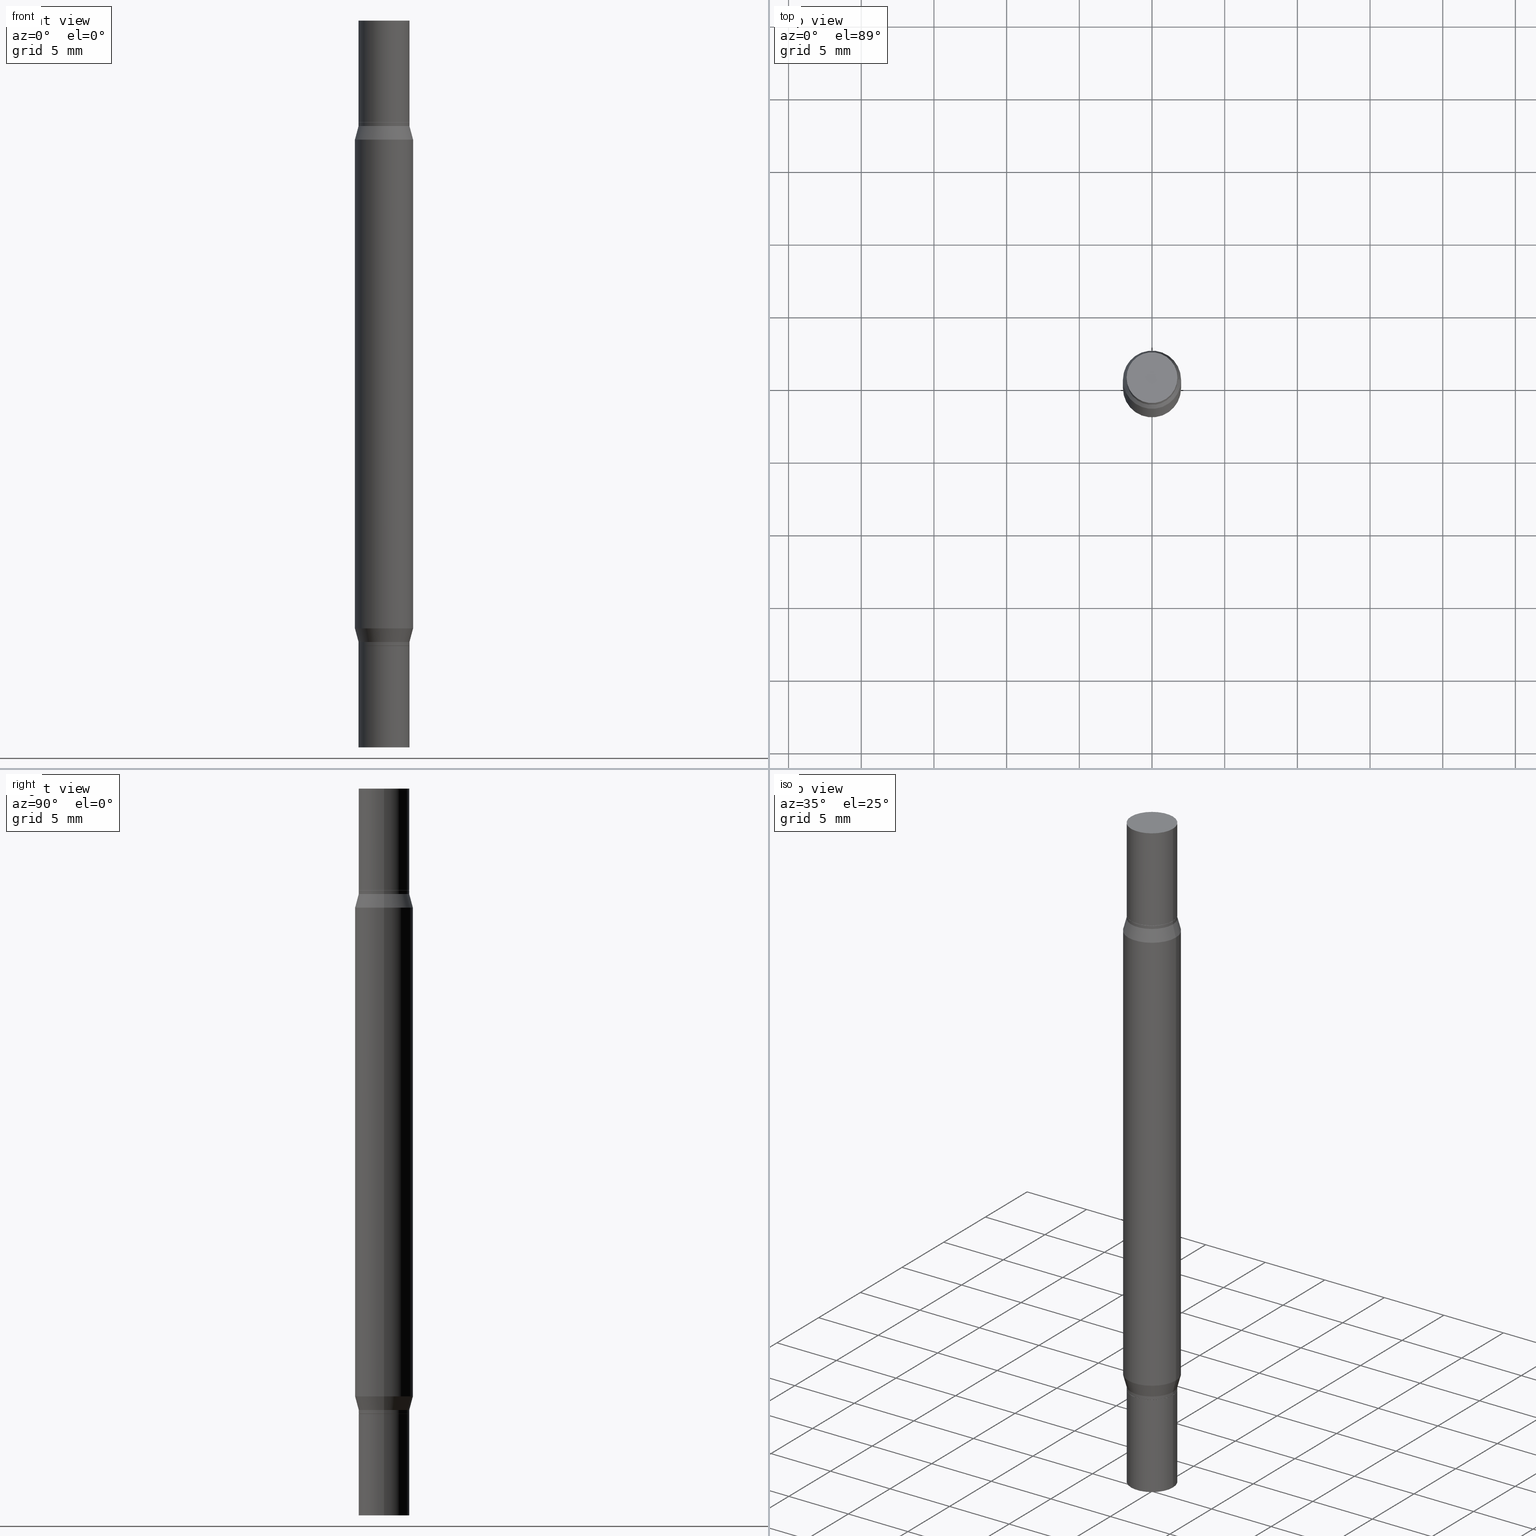
[diagram: canonical four-view strip — front | top / right | iso, engineering-drawing reading convention]
A machine part, canonical four-view strip (front | top / right | iso — engineering-drawing reading convention). The complete STEP part file that produces these views, byte-faithful:
ISO-10303-21;
HEADER;
FILE_DESCRIPTION (( 'STEP AP203' ),
    '1' );
FILE_NAME ('49057.STEP',
    '2024-03-04T16:18:24',
    ( '' ),
    ( '' ),
    'SwSTEP 2.0',
    'SolidWorks 2023',
    '' );
FILE_SCHEMA (( 'CONFIG_CONTROL_DESIGN' ));
ENDSEC;

DATA;
#1 = DIRECTION ( 'NONE',  ( 2.445468806185136597E-29, 3.491805094961124077E-15, 1.000000000000000000 ) ) ;
#2 = CARTESIAN_POINT ( 'NONE',  ( -0.07875000000000001443, -1.740632076205336930E-15, -0.9842499999999998472 ) ) ;
#3 = FACE_OUTER_BOUND ( 'NONE', #600, .T. ) ;
#4 = SECURITY_CLASSIFICATION ( '', '', #347 ) ;
#5 = VECTOR ( 'NONE', #874, 39.37007874015748143 ) ;
#6 = EDGE_LOOP ( 'NONE', ( #361, #790, #529, #318 ) ) ;
#7 = EDGE_CURVE ( 'NONE', #586, #376, #369, .T. ) ;
#8 = CARTESIAN_POINT ( 'NONE',  ( 0.06840000000000005798, -6.388363405681301806E-15, -1.692899999999999849 ) ) ;
#9 = ORIENTED_EDGE ( 'NONE', *, *, #51, .T. ) ;
#10 = CARTESIAN_POINT ( 'NONE',  ( -0.07875000000000001443, -5.850378619788178690E-16, -0.3223607004545533949 ) ) ;
#11 = FACE_OUTER_BOUND ( 'NONE', #391, .T. ) ;
#12 = ORIENTED_EDGE ( 'NONE', *, *, #171, .F. ) ;
#13 = CARTESIAN_POINT ( 'NONE',  ( 4.139934141990817236E-29, -9.620228272121656440E-16, -0.2755999999999999006 ) ) ;
#14 = EDGE_LOOP ( 'NONE', ( #270, #215, #42, #702 ) ) ;
#15 = VECTOR ( 'NONE', #592, 39.37007874015748143 ) ;
#16 = VECTOR ( 'NONE', #587, 39.37007874015748143 ) ;
#17 = CARTESIAN_POINT ( 'NONE',  ( 4.115479453928965691E-29, -9.969408781617772122E-16, -0.2856000000000000760 ) ) ;
#18 = LOCAL_TIME ( 11, 18, 24.00000000000000000, #334 ) ;
#19 = CIRCLE ( 'NONE', #229, 0.06840000000000005798 ) ;
#20 = ORIENTED_EDGE ( 'NONE', *, *, #854, .F. ) ;
#21 = EDGE_CURVE ( 'NONE', #471, #959, #757, .T. ) ;
#22 = ORIENTED_EDGE ( 'NONE', *, *, #545, .F. ) ;
#23 =( CONVERSION_BASED_UNIT ( 'INCH', #388 ) LENGTH_UNIT ( ) NAMED_UNIT ( #828 ) );
#24 = DIRECTION ( 'NONE',  ( 1.000000000000000000, -6.982962677686265922E-15, 2.260776888683160832E-33 ) ) ;
#25 = DIRECTION ( 'NONE',  ( 1.000000000000000000, -6.982962677686265922E-15, 0.000000000000000000 ) ) ;
#26 = ORIENTED_EDGE ( 'NONE', *, *, #545, .T. ) ;
#27 = FACE_OUTER_BOUND ( 'NONE', #194, .T. ) ;
#28 = EDGE_CURVE ( 'NONE', #843, #916, #488, .T. ) ;
#29 = DIRECTION ( 'NONE',  ( 1.000000000000000000, -6.982962677686267499E-15, 0.000000000000000000 ) ) ;
#30 = PLANE ( 'NONE',  #632 ) ;
#31 = CARTESIAN_POINT ( 'NONE',  ( 4.138711407587725556E-29, -9.637687297596452363E-16, -0.2760999999999998455 ) ) ;
#32 = CARTESIAN_POINT ( 'NONE',  ( 4.139934141990817236E-29, -5.910728758527560286E-15, -1.692899999999999849 ) ) ;
#33 = ORIENTED_EDGE ( 'NONE', *, *, #967, .T. ) ;
#34 = DIRECTION ( 'NONE',  ( 1.000000000000000000, -6.982962677686267499E-15, 0.000000000000000000 ) ) ;
#35 = ORIENTED_EDGE ( 'NONE', *, *, #856, .T. ) ;
#36 = ADVANCED_FACE ( 'NONE', ( #53 ), #278, .T. ) ;
#37 = ADVANCED_FACE ( 'NONE', ( #80 ), #164, .T. ) ;
#38 = DIRECTION ( 'NONE',  ( 2.438088387897959208E-29, 3.491805094961123683E-15, 1.000000000000000000 ) ) ;
#39 = DIRECTION ( 'NONE',  ( -2.445468806185136597E-29, 3.491481338843145583E-15, 1.000000000000000000 ) ) ;
#40 = CIRCLE ( 'NONE', #548, 0.06890000000000007230 ) ;
#41 = AXIS2_PLACEMENT_3D ( 'NONE', #105, #394, #623 ) ;
#42 = ORIENTED_EDGE ( 'NONE', *, *, #532, .T. ) ;
#43 = FACE_OUTER_BOUND ( 'NONE', #687, .T. ) ;
#44 = DIRECTION ( 'NONE',  ( -2.445468806185136877E-29, 3.491481338843145188E-15, 1.000000000000000000 ) ) ;
#45 = ADVANCED_FACE ( 'NONE', ( #740 ), #814, .T. ) ;
#46 = ORIENTED_EDGE ( 'NONE', *, *, #106, .F. ) ;
#47 = CARTESIAN_POINT ( 'NONE',  ( 0.000000000000000000, -6.873299672471851415E-15, -1.968499999999999694 ) ) ;
#48 = VECTOR ( 'NONE', #720, 39.37007874015748854 ) ;
#49 = SHAPE_DEFINITION_REPRESENTATION ( #896, #783 ) ;
#50 = PRODUCT_RELATED_PRODUCT_CATEGORY ( 'detail', '', ( #820 ) ) ;
#51 = EDGE_CURVE ( 'NONE', #755, #372, #779, .T. ) ;
#52 = FACE_OUTER_BOUND ( 'NONE', #315, .T. ) ;
#53 = FACE_OUTER_BOUND ( 'NONE', #247, .T. ) ;
#54 = VECTOR ( 'NONE', #181, 39.37007874015748854 ) ;
#55 = AXIS2_PLACEMENT_3D ( 'NONE', #573, #224, #295 ) ;
#56 = ORIENTED_EDGE ( 'NONE', *, *, #625, .F. ) ;
#57 = DIRECTION ( 'NONE',  ( -2.445468806185136597E-29, -3.491805094961124077E-15, -1.000000000000000000 ) ) ;
#58 = ORIENTED_EDGE ( 'NONE', *, *, #742, .F. ) ;
#59 = COORDINATED_UNIVERSAL_TIME_OFFSET ( 5, 0, .BEHIND. ) ;
#60 = ORIENTED_EDGE ( 'NONE', *, *, #28, .F. ) ;
#61 = CARTESIAN_POINT ( 'NONE',  ( 4.811261284926255481E-16, 0.06889999999999416036, -1.692900000000000071 ) ) ;
#62 = DIRECTION ( 'NONE',  ( -2.445468806185136597E-29, -3.491805094961124077E-15, -1.000000000000000000 ) ) ;
#63 = PLANE ( 'NONE',  #648 ) ;
#64 = CARTESIAN_POINT ( 'NONE',  ( -0.06840000000000005798, -4.919225909388897670E-16, -0.2755999999999999006 ) ) ;
#65 = DIRECTION ( 'NONE',  ( 2.445468806185136597E-29, 3.491805094961124077E-15, 1.000000000000000000 ) ) ;
#66 = CARTESIAN_POINT ( 'NONE',  ( 4.138711407587725556E-29, -5.908983017858139571E-15, -1.692399999999999904 ) ) ;
#67 = CARTESIAN_POINT ( 'NONE',  ( 0.06840000000000005798, -1.439657474365906573E-15, -0.2755999999999999006 ) ) ;
#68 = FACE_OUTER_BOUND ( 'NONE', #570, .T. ) ;
#69 = ORIENTED_EDGE ( 'NONE', *, *, #76, .F. ) ;
#70 = DIRECTION ( 'NONE',  ( 0.000000000000000000, 1.000000000000000000, -3.491643216902134435E-15 ) ) ;
#71 = DIRECTION ( 'NONE',  ( -2.445468806185136597E-29, -3.491805094961124077E-15, -1.000000000000000000 ) ) ;
#72 = CARTESIAN_POINT ( 'NONE',  ( 0.06890000000000000291, -4.811261284925837385E-16, 3.359685798523399268E-30 ) ) ;
#73 = CIRCLE ( 'NONE', #954, 0.06889999999999998903 ) ;
#74 = DIRECTION ( 'NONE',  ( 2.445468806185136597E-29, 3.491805094961124077E-15, 1.000000000000000000 ) ) ;
#75 = AXIS2_PLACEMENT_3D ( 'NONE', #79, #290, #888 ) ;
#76 = EDGE_CURVE ( 'NONE', #755, #178, #375, .T. ) ;
#77 = ORIENTED_EDGE ( 'NONE', *, *, #859, .T. ) ;
#78 = AXIS2_PLACEMENT_3D ( 'NONE', #209, #141, #297 ) ;
#79 = CARTESIAN_POINT ( 'NONE',  ( 4.115479453928965691E-29, -5.875813945139128637E-15, -1.682899999999999618 ) ) ;
#80 = FACE_OUTER_BOUND ( 'NONE', #349, .T. ) ;
#81 = DIRECTION ( 'NONE',  ( -2.445468806185136597E-29, 3.491481338843145583E-15, 1.000000000000000000 ) ) ;
#82 = ORIENTED_EDGE ( 'NONE', *, *, #382, .F. ) ;
#83 = CARTESIAN_POINT ( 'NONE',  ( 0.000000000000000000, 0.000000000000000000, 0.000000000000000000 ) ) ;
#84 = ADVANCED_FACE ( 'NONE', ( #3 ), #746, .T. ) ;
#85 = ORIENTED_EDGE ( 'NONE', *, *, #457, .F. ) ;
#86 = DIRECTION ( 'NONE',  ( 2.445468806185136597E-29, 3.491805094961124077E-15, 1.000000000000000000 ) ) ;
#87 = ADVANCED_FACE ( 'NONE', ( #809 ), #184, .T. ) ;
#88 = EDGE_LOOP ( 'NONE', ( #308, #130 ) ) ;
#89 = EDGE_LOOP ( 'NONE', ( #616, #345, #400, #465 ) ) ;
#90 = AXIS2_PLACEMENT_3D ( 'NONE', #174, #453, #869 ) ;
#91 = AXIS2_PLACEMENT_3D ( 'NONE', #685, #839, #774 ) ;
#92 = CARTESIAN_POINT ( 'NONE',  ( 0.06890000000000000291, -6.356940073631712375E-15, -1.682899999999999618 ) ) ;
#93 = DIRECTION ( 'NONE',  ( -2.438088387897959208E-29, -3.491805094961123683E-15, -1.000000000000000000 ) ) ;
#94 = CARTESIAN_POINT ( 'NONE',  ( -0.07875000000000001443, -5.850378619788178690E-16, -0.3223607004545533949 ) ) ;
#95 = AXIS2_PLACEMENT_3D ( 'NONE', #31, #614, #930 ) ;
#96 = ORIENTED_EDGE ( 'NONE', *, *, #457, .T. ) ;
#97 = ADVANCED_FACE ( 'NONE', ( #889 ), #228, .F. ) ;
#98 = DIRECTION ( 'NONE',  ( 1.000000000000000000, -6.982962677686267499E-15, 0.000000000000000000 ) ) ;
#99 = DIRECTION ( 'NONE',  ( 0.7071067811865656694, -7.406779323393341342E-15, -0.7071067811865294761 ) ) ;
#100 = DIRECTION ( 'NONE',  ( 1.000000000000000000, 0.000000000000000000, 0.000000000000000000 ) ) ;
#101 = ORIENTED_EDGE ( 'NONE', *, *, #468, .T. ) ;
#102 = EDGE_LOOP ( 'NONE', ( #604, #503, #580, #58 ) ) ;
#103 = EDGE_CURVE ( 'NONE', #426, #483, #291, .T. ) ;
#104 =( NAMED_UNIT ( * ) PLANE_ANGLE_UNIT ( ) SI_UNIT ( $, .RADIAN. ) );
#105 = CARTESIAN_POINT ( 'NONE',  ( 4.139934141990817236E-29, -9.620228272121656440E-16, -0.2755999999999999006 ) ) ;
#106 = EDGE_CURVE ( 'NONE', #372, #963, #509, .T. ) ;
#107 = FACE_OUTER_BOUND ( 'NONE', #89, .T. ) ;
#108 = DIRECTION ( 'NONE',  ( 1.000000000000000000, -6.982962677686265922E-15, 2.260776888683160832E-33 ) ) ;
#109 = DIRECTION ( 'NONE',  ( 2.445468806185136597E-29, 3.491805094961124077E-15, 1.000000000000000000 ) ) ;
#110 = VECTOR ( 'NONE', #288, 39.37007874015748143 ) ;
#111 = DIRECTION ( 'NONE',  ( 1.000000000000000000, -6.982962677686265922E-15, 4.876176775795934672E-29 ) ) ;
#112 = DIRECTION ( 'NONE',  ( 1.000000000000000000, -6.982962677686265922E-15, 0.000000000000000000 ) ) ;
#113 = AXIS2_PLACEMENT_3D ( 'NONE', #473, #715, #800 ) ;
#114 = AXIS2_PLACEMENT_3D ( 'NONE', #741, #371, #905 ) ;
#115 = ORIENTED_EDGE ( 'NONE', *, *, #625, .T. ) ;
#116 = CYLINDRICAL_SURFACE ( 'NONE', #466, 0.07875000000000001443 ) ;
#117 = APPROVAL_ROLE ( '' ) ;
#118 = DIRECTION ( 'NONE',  ( 1.000000000000000000, -6.982962677686267499E-15, 0.000000000000000000 ) ) ;
#119 = EDGE_CURVE ( 'NONE', #455, #907, #237, .T. ) ;
#120 = DATE_TIME_ROLE ( 'classification_date' ) ;
#121 = DIRECTION ( 'NONE',  ( 1.000000000000000000, -6.982962677686258822E-15, 0.000000000000000000 ) ) ;
#122 = CALENDAR_DATE ( 2024, 4, 3 ) ;
#123 = CARTESIAN_POINT ( 'NONE',  ( 4.115479453928965691E-29, -9.969408781617772122E-16, -0.2856000000000000760 ) ) ;
#124 = CIRCLE ( 'NONE', #75, 0.06890000000000000291 ) ;
#125 = ORIENTED_EDGE ( 'NONE', *, *, #882, .F. ) ;
#126 = CARTESIAN_POINT ( 'NONE',  ( -0.06889999999999998903, -4.910804177131873011E-16, -0.2760999999999998455 ) ) ;
#127 = DIRECTION ( 'NONE',  ( 0.000000000000000000, 1.000000000000000000, -3.469013325287952504E-15 ) ) ;
#128 = PERSON_AND_ORGANIZATION ( #734, #551 ) ;
#129 = DIRECTION ( 'NONE',  ( -2.445468806185136597E-29, 3.491481338843145583E-15, 1.000000000000000000 ) ) ;
#130 = ORIENTED_EDGE ( 'NONE', *, *, #307, .F. ) ;
#131 = CARTESIAN_POINT ( 'NONE',  ( -0.06890000000000000291, -6.400611360425393480E-15, -1.968499999999999694 ) ) ;
#132 = DIRECTION ( 'NONE',  ( -0.000000000000000000, -3.491643216902134830E-15, -1.000000000000000000 ) ) ;
#133 = EDGE_CURVE ( 'NONE', #158, #426, #535, .T. ) ;
#134 = DATE_AND_TIME ( #644, #385 ) ;
#135 = ORIENTED_EDGE ( 'NONE', *, *, #355, .F. ) ;
#136 = DIRECTION ( 'NONE',  ( 1.000000000000000000, -6.982962677686265922E-15, 0.000000000000000000 ) ) ;
#137 = DIRECTION ( 'NONE',  ( 1.000000000000000000, -6.982962677686261189E-15, 0.000000000000000000 ) ) ;
#138 = ORIENTED_EDGE ( 'NONE', *, *, #359, .T. ) ;
#139 = CARTESIAN_POINT ( 'NONE',  ( 4.139934141990817236E-29, -5.910728758527560286E-15, -1.692899999999999849 ) ) ;
#140 = AXIS2_PLACEMENT_3D ( 'NONE', #884, #374, #137 ) ;
#141 = DIRECTION ( 'NONE',  ( -2.445468806185136597E-29, 3.491481338843145583E-15, 1.000000000000000000 ) ) ;
#142 = CC_DESIGN_APPROVAL ( #199, ( #4 ) ) ;
#143 = CLOSED_SHELL ( 'NONE', ( #511, #910, #180, #45, #712, #280, #464, #680, #613, #36 ) ) ;
#144 = AXIS2_PLACEMENT_3D ( 'NONE', #17, #472, #919 ) ;
#145 = VECTOR ( 'NONE', #607, 39.37007874015748143 ) ;
#146 = DIRECTION ( 'NONE',  ( -2.445468806185136597E-29, -3.491805094961124077E-15, -1.000000000000000000 ) ) ;
#147 = DIRECTION ( 'NONE',  ( -2.445468806185136597E-29, -3.491805094961124077E-15, -1.000000000000000000 ) ) ;
#148 = DIRECTION ( 'NONE',  ( 1.000000000000000000, -6.982962677686265922E-15, 4.876176775795935232E-29 ) ) ;
#149 = DIRECTION ( 'NONE',  ( 1.000000000000000000, -6.982962677686265922E-15, 4.876176775795935793E-29 ) ) ;
#150 = CARTESIAN_POINT ( 'NONE',  ( -0.06890000000000000291, -5.386250000200419884E-15, -1.682899999999999618 ) ) ;
#151 = VECTOR ( 'NONE', #840, 39.37007874015748143 ) ;
#152 = EDGE_CURVE ( 'NONE', #327, #758, #474, .T. ) ;
#153 = DIRECTION ( 'NONE',  ( 2.445468806185136597E-29, 3.491805094961124077E-15, 1.000000000000000000 ) ) ;
#154 = ORIENTED_EDGE ( 'NONE', *, *, #259, .F. ) ;
#155 = DIRECTION ( 'NONE',  ( 1.000000000000000000, -6.982962677686265922E-15, 0.000000000000000000 ) ) ;
#156 = CARTESIAN_POINT ( 'NONE',  ( 0.000000000000000000, -6.873299672471851415E-15, -1.968499999999999694 ) ) ;
#157 = EDGE_CURVE ( 'NONE', #758, #751, #971, .T. ) ;
#158 = VERTEX_POINT ( 'NONE', #547 ) ;
#159 = CARTESIAN_POINT ( 'NONE',  ( -0.06890000000000000291, -5.242525661153185867E-16, -0.2856000000000000760 ) ) ;
#160 = DIRECTION ( 'NONE',  ( 1.000000000000000000, -6.982962677686265922E-15, 0.000000000000000000 ) ) ;
#161 = CARTESIAN_POINT ( 'NONE',  ( 4.813905344975441835E-29, -6.872981015512731707E-15, -1.968500000000000139 ) ) ;
#162 = CIRCLE ( 'NONE', #756, 0.06890000000000007230 ) ;
#163 = PRODUCT_DEFINITION_FORMATION_WITH_SPECIFIED_SOURCE ( 'ANY', '', #820, .NOT_KNOWN. ) ;
#164 = CONICAL_SURFACE ( 'NONE', #679, 0.06890000000000000291, 0.2617993877991507956 ) ;
#165 = EDGE_LOOP ( 'NONE', ( #542, #892, #805, #405 ) ) ;
#166 = AXIS2_PLACEMENT_3D ( 'NONE', #156, #238, #25 ) ;
#167 = CARTESIAN_POINT ( 'NONE',  ( 0.07875000000000001443, -2.830804604397638560E-15, -0.9842499999999998472 ) ) ;
#168 = ORIENTED_EDGE ( 'NONE', *, *, #325, .F. ) ;
#169 = ADVANCED_FACE ( 'NONE', ( #786 ), #893, .T. ) ;
#170 = VERTEX_POINT ( 'NONE', #126 ) ;
#171 = EDGE_CURVE ( 'NONE', #490, #327, #699, .T. ) ;
#172 = CARTESIAN_POINT ( 'NONE',  ( -0.06890000000000007230, 4.895639449387095418E-16, -3.389146277185633520E-30 ) ) ;
#173 = CIRCLE ( 'NONE', #421, 0.06889999999999998903 ) ;
#174 = CARTESIAN_POINT ( 'NONE',  ( 0.000000000000000000, -6.873299672471851415E-15, -1.968499999999999694 ) ) ;
#175 = EDGE_LOOP ( 'NONE', ( #943, #743 ) ) ;
#176 = DESIGN_CONTEXT ( 'detailed design', #903, 'design' ) ;
#177 = VERTEX_POINT ( 'NONE', #821 ) ;
#178 = VERTEX_POINT ( 'NONE', #650 ) ;
#179 = DIRECTION ( 'NONE',  ( 1.000000000000000000, -6.982962677686265922E-15, 2.260776888683160832E-33 ) ) ;
#180 = ADVANCED_FACE ( 'NONE', ( #68 ), #722, .T. ) ;
#181 = DIRECTION ( 'NONE',  ( 0.2588190451025220162, -5.180148453816010357E-15, -0.9659258262890678681 ) ) ;
#182 = DIRECTION ( 'NONE',  ( -2.438088387897959208E-29, -3.491805094961123683E-15, -1.000000000000000000 ) ) ;
#183 = CC_DESIGN_APPROVAL ( #336, ( #163 ) ) ;
#184 = CONICAL_SURFACE ( 'NONE', #711, 0.06840000000000005798, 0.7853981633974739252 ) ;
#185 = VECTOR ( 'NONE', #292, 39.37007874015748854 ) ;
#186 = CARTESIAN_POINT ( 'NONE',  ( 4.811261284926255481E-16, 0.06889999999999911473, -0.2756000000000001782 ) ) ;
#187 = CYLINDRICAL_SURFACE ( 'NONE', #865, 0.06890000000000007230 ) ;
#188 = CC_DESIGN_DATE_AND_TIME_ASSIGNMENT ( #406, #640, ( #655 ) ) ;
#189 = ORIENTED_EDGE ( 'NONE', *, *, #491, .T. ) ;
#190 = ORIENTED_EDGE ( 'NONE', *, *, #268, .F. ) ;
#191 = DIRECTION ( 'NONE',  ( 1.000000000000000000, -6.982962677686267499E-15, 0.000000000000000000 ) ) ;
#192 = APPLICATION_PROTOCOL_DEFINITION ( 'international standard', 'config_control_design', 1994, #534 ) ;
#193 = LINE ( 'NONE', #399, #568 ) ;
#194 = EDGE_LOOP ( 'NONE', ( #522, #753, #835, #825 ) ) ;
#195 = VERTEX_POINT ( 'NONE', #358 ) ;
#196 = CARTESIAN_POINT ( 'NONE',  ( 0.06890000000000007230, -1.443148955704749777E-15, -0.2755999999999999006 ) ) ;
#197 = DIRECTION ( 'NONE',  ( -2.445468806185136597E-29, -3.491805094961124077E-15, -1.000000000000000000 ) ) ;
#198 = ORIENTED_EDGE ( 'NONE', *, *, #221, .F. ) ;
#199 = APPROVAL ( #781, 'UNSPECIFIED' ) ;
#200 = DIRECTION ( 'NONE',  ( 1.000000000000000000, -6.982962677686265922E-15, 0.000000000000000000 ) ) ;
#201 = APPROVAL_STATUS ( 'not_yet_approved' ) ;
#202 = CARTESIAN_POINT ( 'NONE',  ( 0.06890000000000000291, -6.356940073631712375E-15, -1.682899999999999618 ) ) ;
#203 = AXIS2_PLACEMENT_3D ( 'NONE', #789, #544, #707 ) ;
#204 = CC_DESIGN_APPROVAL ( #780, ( #655 ) ) ;
#205 = ORIENTED_EDGE ( 'NONE', *, *, #272, .T. ) ;
#206 = CYLINDRICAL_SURFACE ( 'NONE', #565, 0.06890000000000007230 ) ;
#207 = EDGE_CURVE ( 'NONE', #376, #586, #585, .T. ) ;
#208 = ORIENTED_EDGE ( 'NONE', *, *, #133, .T. ) ;
#209 = CARTESIAN_POINT ( 'NONE',  ( 4.115479453928965691E-29, -5.875813945139128637E-15, -1.682899999999999618 ) ) ;
#210 = CYLINDRICAL_SURFACE ( 'NONE', #444, 0.06890000000000000291 ) ;
#211 = APPROVAL_STATUS ( 'not_yet_approved' ) ;
#212 = EDGE_CURVE ( 'NONE', #178, #177, #409, .T. ) ;
#213 = ORIENTED_EDGE ( 'NONE', *, *, #724, .F. ) ;
#214 = VECTOR ( 'NONE', #941, 39.37007874015748143 ) ;
#215 = ORIENTED_EDGE ( 'NONE', *, *, #688, .T. ) ;
#216 = AXIS2_PLACEMENT_3D ( 'NONE', #703, #628, #34 ) ;
#217 = PERSON_AND_ORGANIZATION_ROLE ( 'design_supplier' ) ;
#218 = LINE ( 'NONE', #973, #110 ) ;
#219 = ORIENTED_EDGE ( 'NONE', *, *, #885, .T. ) ;
#220 = CARTESIAN_POINT ( 'NONE',  ( 4.115479453928965691E-29, -9.969408781617772122E-16, -0.2856000000000000760 ) ) ;
#221 = EDGE_CURVE ( 'NONE', #676, #277, #438, .T. ) ;
#222 = DIRECTION ( 'NONE',  ( 2.445468806185136597E-29, 3.491805094961124077E-15, 1.000000000000000000 ) ) ;
#223 = CARTESIAN_POINT ( 'NONE',  ( 0.06840000000000005798, -1.439657474365906573E-15, -0.2755999999999999006 ) ) ;
#224 = DIRECTION ( 'NONE',  ( -2.445468806185136597E-29, -3.491805094961124077E-15, -1.000000000000000000 ) ) ;
#225 = CARTESIAN_POINT ( 'NONE',  ( 4.139934141990817236E-29, -9.620228272121656440E-16, -0.2755999999999999006 ) ) ;
#226 = EDGE_CURVE ( 'NONE', #559, #277, #73, .T. ) ;
#227 = DIRECTION ( 'NONE',  ( -2.445468806185136877E-29, -3.491805094961123683E-15, -1.000000000000000000 ) ) ;
#228 = PLANE ( 'NONE',  #634 ) ;
#229 = AXIS2_PLACEMENT_3D ( 'NONE', #851, #153, #579 ) ;
#230 = ORIENTED_EDGE ( 'NONE', *, *, #553, .T. ) ;
#231 = LINE ( 'NONE', #739, #776 ) ;
#232 = CIRCLE ( 'NONE', #506, 0.06840000000000005798 ) ;
#233 = DIRECTION ( 'NONE',  ( -2.445468806185136877E-29, -3.491805094961123683E-15, -1.000000000000000000 ) ) ;
#234 = ORIENTED_EDGE ( 'NONE', *, *, #491, .F. ) ;
#235 = CARTESIAN_POINT ( 'NONE',  ( 4.115479453928965691E-29, -5.875813945139128637E-15, -1.682899999999999618 ) ) ;
#236 = CARTESIAN_POINT ( 'NONE',  ( 0.000000000000000000, 0.000000000000000000, 0.000000000000000000 ) ) ;
#237 = LINE ( 'NONE', #909, #5 ) ;
#238 = DIRECTION ( 'NONE',  ( -2.445468806185136597E-29, -3.491805094961124077E-15, -1.000000000000000000 ) ) ;
#239 = CARTESIAN_POINT ( 'NONE',  ( -0.07875000000000001443, -6.333035455147343525E-15, -1.968499999999999694 ) ) ;
#240 = EDGE_LOOP ( 'NONE', ( #412, #698, #609, #794 ) ) ;
#241 = FACE_OUTER_BOUND ( 'NONE', #595, .T. ) ;
#242 = CARTESIAN_POINT ( 'NONE',  ( 4.115479453928965691E-29, -9.969408781617772122E-16, -0.2856000000000000760 ) ) ;
#243 = CARTESIAN_POINT ( 'NONE',  ( 4.115479453928965691E-29, -9.969408781617772122E-16, -0.2856000000000000760 ) ) ;
#244 = ORIENTED_EDGE ( 'NONE', *, *, #605, .F. ) ;
#245 = VECTOR ( 'NONE', #248, 39.37007874015748143 ) ;
#246 = EDGE_LOOP ( 'NONE', ( #448, #470, #721, #416 ) ) ;
#247 = EDGE_LOOP ( 'NONE', ( #858, #725, #463, #60 ) ) ;
#248 = DIRECTION ( 'NONE',  ( -2.445468806185136877E-29, -3.491805094961123683E-15, -1.000000000000000000 ) ) ;
#249 = CARTESIAN_POINT ( 'NONE',  ( 0.06890000000000007230, -7.354107144005315446E-15, -1.968500000000000139 ) ) ;
#250 = DIRECTION ( 'NONE',  ( 2.445468806185136597E-29, 3.491805094961124077E-15, 1.000000000000000000 ) ) ;
#251 = FACE_OUTER_BOUND ( 'NONE', #636, .T. ) ;
#252 = DIRECTION ( 'NONE',  ( -2.445468806185136597E-29, 3.491481338843145583E-15, 1.000000000000000000 ) ) ;
#253 = DIRECTION ( 'NONE',  ( 1.000000000000000000, -6.982962677686265922E-15, 2.260776888683160832E-33 ) ) ;
#254 = DIRECTION ( 'NONE',  ( -0.7071067811865656694, 2.382025595312421833E-15, -0.7071067811865294761 ) ) ;
#255 = CIRCLE ( 'NONE', #931, 0.06890000000000007230 ) ;
#256 = LOCAL_TIME ( 11, 18, 24.00000000000000000, #282 ) ;
#257 = CARTESIAN_POINT ( 'NONE',  ( 0.06890000000000000291, -1.478067006654360951E-15, -0.2856000000000000760 ) ) ;
#258 = FACE_OUTER_BOUND ( 'NONE', #246, .T. ) ;
#259 = EDGE_CURVE ( 'NONE', #195, #952, #682, .T. ) ;
#260 = ORIENTED_EDGE ( 'NONE', *, *, #605, .T. ) ;
#261 = ORIENTED_EDGE ( 'NONE', *, *, #7, .T. ) ;
#262 = DIRECTION ( 'NONE',  ( -2.445468806185136597E-29, 3.491481338843145583E-15, 1.000000000000000000 ) ) ;
#263 = DIRECTION ( 'NONE',  ( 1.000000000000000000, -6.982962677686265922E-15, 0.000000000000000000 ) ) ;
#264 = PLANE ( 'NONE',  #340 ) ;
#265 = CARTESIAN_POINT ( 'NONE',  ( 4.138711407587725556E-29, -5.908983017858139571E-15, -1.692399999999999904 ) ) ;
#266 = CYLINDRICAL_SURFACE ( 'NONE', #404, 0.06890000000000007230 ) ;
#267 = ORIENTED_EDGE ( 'NONE', *, *, #885, .F. ) ;
#268 = EDGE_CURVE ( 'NONE', #952, #195, #667, .T. ) ;
#269 = CARTESIAN_POINT ( 'NONE',  ( 0.06890000000000000291, -1.478067006654360951E-15, -0.2856000000000000760 ) ) ;
#270 = ORIENTED_EDGE ( 'NONE', *, *, #468, .F. ) ;
#271 = CC_DESIGN_PERSON_AND_ORGANIZATION_ASSIGNMENT ( #492, #787, ( #4 ) ) ;
#272 = EDGE_CURVE ( 'NONE', #751, #758, #759, .T. ) ;
#273 = VECTOR ( 'NONE', #911, 39.37007874015748854 ) ;
#274 = CLOSED_SHELL ( 'NONE', ( #581, #807, #87, #922, #338, #303, #360, #942, #657, #408, #37, #84, #169, #760, #957, #97 ) ) ;
#275 = DIRECTION ( 'NONE',  ( 1.000000000000000000, -6.982962677686258822E-15, 0.000000000000000000 ) ) ;
#276 = AXIS2_PLACEMENT_3D ( 'NONE', #887, #147, #136 ) ;
#277 = VERTEX_POINT ( 'NONE', #596 ) ;
#278 = CYLINDRICAL_SURFACE ( 'NONE', #113, 0.07875000000000001443 ) ;
#279 = ORIENTED_EDGE ( 'NONE', *, *, #157, .T. ) ;
#280 = ADVANCED_FACE ( 'NONE', ( #939 ), #264, .F. ) ;
#281 = VERTEX_POINT ( 'NONE', #612 ) ;
#282 = COORDINATED_UNIVERSAL_TIME_OFFSET ( 5, 0, .BEHIND. ) ;
#283 = VECTOR ( 'NONE', #484, 39.37007874015748143 ) ;
#284 = ORIENTED_EDGE ( 'NONE', *, *, #929, .T. ) ;
#285 = CIRCLE ( 'NONE', #366, 0.06890000000000007230 ) ;
#286 = CARTESIAN_POINT ( 'NONE',  ( 0.06890000000000007230, -6.391854887020144024E-15, -1.692899999999999849 ) ) ;
#287 = DIRECTION ( 'NONE',  ( -2.438088387897960049E-29, 3.491481338843145188E-15, 1.000000000000000000 ) ) ;
#288 = DIRECTION ( 'NONE',  ( -2.445468806185136877E-29, -3.491805094961123683E-15, -1.000000000000000000 ) ) ;
#289 = FACE_OUTER_BOUND ( 'NONE', #642, .T. ) ;
#290 = DIRECTION ( 'NONE',  ( -2.445468806185136597E-29, 3.491481338843145583E-15, 1.000000000000000000 ) ) ;
#291 = LINE ( 'NONE', #895, #298 ) ;
#292 = DIRECTION ( 'NONE',  ( -0.2588190451025220162, 5.211531920934554197E-15, 0.9659258262890678681 ) ) ;
#293 = CARTESIAN_POINT ( 'NONE',  ( 4.855017685067750029E-29, -6.814105804531465303E-15, -1.968500000000000139 ) ) ;
#294 = CARTESIAN_POINT ( 'NONE',  ( 4.139934141990817236E-29, -9.620228272121656440E-16, -0.2755999999999999006 ) ) ;
#295 = DIRECTION ( 'NONE',  ( 1.000000000000000000, -6.982962677686267499E-15, 0.000000000000000000 ) ) ;
#296 = AXIS2_PLACEMENT_3D ( 'NONE', #13, #516, #443 ) ;
#297 = DIRECTION ( 'NONE',  ( 1.000000000000000000, -6.982962677686265922E-15, 0.000000000000000000 ) ) ;
#298 = VECTOR ( 'NONE', #233, 39.37007874015748143 ) ;
#299 = AXIS2_PLACEMENT_3D ( 'NONE', #658, #1, #735 ) ;
#300 = ORIENTED_EDGE ( 'NONE', *, *, #532, .F. ) ;
#301 = EDGE_CURVE ( 'NONE', #676, #281, #19, .T. ) ;
#302 = CARTESIAN_POINT ( 'NONE',  ( 0.000000000000000000, -6.873299672471851415E-15, -1.968499999999999694 ) ) ;
#303 = ADVANCED_FACE ( 'NONE', ( #960 ), #615, .T. ) ;
#304 = CARTESIAN_POINT ( 'NONE',  ( 4.025582307673839975E-29, -1.125302079303325561E-15, -0.3223607004545533949 ) ) ;
#305 = ORIENTED_EDGE ( 'NONE', *, *, #694, .F. ) ;
#306 = CYLINDRICAL_SURFACE ( 'NONE', #339, 0.06890000000000000291 ) ;
#307 = EDGE_CURVE ( 'NONE', #557, #953, #285, .T. ) ;
#308 = ORIENTED_EDGE ( 'NONE', *, *, #929, .F. ) ;
#309 = DIRECTION ( 'NONE',  ( 1.000000000000000000, -6.982962677686265922E-15, 0.000000000000000000 ) ) ;
#310 = DIRECTION ( 'NONE',  ( 1.000000000000000000, -6.982962677686267499E-15, 0.000000000000000000 ) ) ;
#311 = AXIS2_PLACEMENT_3D ( 'NONE', #235, #262, #401 ) ;
#312 = AXIS2_PLACEMENT_3D ( 'NONE', #66, #660, #578 ) ;
#313 = VECTOR ( 'NONE', #44, 39.37007874015748143 ) ;
#314 = AXIS2_PLACEMENT_3D ( 'NONE', #225, #222, #976 ) ;
#315 = EDGE_LOOP ( 'NONE', ( #69, #9, #801, #837 ) ) ;
#316 = CARTESIAN_POINT ( 'NONE',  ( 4.139934141990817236E-29, -9.620228272121656440E-16, -0.2755999999999999006 ) ) ;
#317 = CARTESIAN_POINT ( 'NONE',  ( 0.06890000000000000291, -7.354425800964435942E-15, -1.968499999999999694 ) ) ;
#318 = ORIENTED_EDGE ( 'NONE', *, *, #530, .F. ) ;
#319 = ORIENTED_EDGE ( 'NONE', *, *, #152, .T. ) ;
#320 = DIRECTION ( 'NONE',  ( 1.000000000000000000, -6.982962677686261189E-15, 0.000000000000000000 ) ) ;
#321 = PLANE ( 'NONE',  #796 ) ;
#322 =( LENGTH_UNIT ( ) NAMED_UNIT ( * ) SI_UNIT ( $, .METRE. ) );
#323 = CARTESIAN_POINT ( 'NONE',  ( 0.06890000000000000291, -1.478067006654360951E-15, -0.2856000000000000760 ) ) ;
#324 = EDGE_LOOP ( 'NONE', ( #305, #96, #912, #168 ) ) ;
#325 = EDGE_CURVE ( 'NONE', #524, #953, #624, .T. ) ;
#326 = CARTESIAN_POINT ( 'NONE',  ( 0.07875000000000001443, -1.675210390171119696E-15, -0.3223607004545533949 ) ) ;
#327 = VERTEX_POINT ( 'NONE', #269 ) ;
#328 = EDGE_LOOP ( 'NONE', ( #190, #154 ) ) ;
#329 = DIRECTION ( 'NONE',  ( -2.445468806185136597E-29, -3.491805094961124077E-15, -1.000000000000000000 ) ) ;
#330 = AXIS2_PLACEMENT_3D ( 'NONE', #558, #252, #320 ) ;
#331 = CC_DESIGN_SECURITY_CLASSIFICATION ( #4, ( #163 ) ) ;
#332 = EDGE_CURVE ( 'NONE', #876, #170, #775, .T. ) ;
#333 = ADVANCED_FACE ( 'NONE', ( #251 ), #266, .T. ) ;
#334 = COORDINATED_UNIVERSAL_TIME_OFFSET ( 5, 0, .BEHIND. ) ;
#335 = DIRECTION ( 'NONE',  ( 1.000000000000000000, -6.982962677686265922E-15, 0.000000000000000000 ) ) ;
#336 = APPROVAL ( #211, 'UNSPECIFIED' ) ;
#337 = EDGE_LOOP ( 'NONE', ( #777, #482, #663, #528 ) ) ;
#338 = ADVANCED_FACE ( 'NONE', ( #427 ), #729, .T. ) ;
#339 = AXIS2_PLACEMENT_3D ( 'NONE', #236, #577, #745 ) ;
#340 = AXIS2_PLACEMENT_3D ( 'NONE', #782, #93, #24 ) ;
#341 = VERTEX_POINT ( 'NONE', #356 ) ;
#342 = ORIENTED_EDGE ( 'NONE', *, *, #119, .F. ) ;
#343 = EDGE_CURVE ( 'NONE', #876, #683, #519, .T. ) ;
#344 = COORDINATED_UNIVERSAL_TIME_OFFSET ( 5, 0, .BEHIND. ) ;
#345 = ORIENTED_EDGE ( 'NONE', *, *, #672, .T. ) ;
#346 = CARTESIAN_POINT ( 'NONE',  ( -0.06890000000000007230, -8.163773080062737161E-18, -0.2755999999999999006 ) ) ;
#347 = SECURITY_CLASSIFICATION_LEVEL ( 'unclassified' ) ;
#348 = VECTOR ( 'NONE', #363, 39.37007874015748143 ) ;
#349 = EDGE_LOOP ( 'NONE', ( #384, #692, #674, #26 ) ) ;
#350 = ADVANCED_FACE ( 'NONE', ( #435 ), #63, .F. ) ;
#351 = DIRECTION ( 'NONE',  ( 1.000000000000000000, -6.982962677686265922E-15, 4.876176775795935793E-29 ) ) ;
#352 = CARTESIAN_POINT ( 'NONE',  ( 0.000000000000000000, -6.873299672471851415E-15, -1.968499999999999694 ) ) ;
#353 = DIRECTION ( 'NONE',  ( 1.000000000000000000, -6.982962677686273810E-15, 0.000000000000000000 ) ) ;
#354 = DIRECTION ( 'NONE',  ( -2.445468806185136597E-29, -3.491805094961124077E-15, -1.000000000000000000 ) ) ;
#355 = EDGE_CURVE ( 'NONE', #277, #559, #797, .T. ) ;
#356 = CARTESIAN_POINT ( 'NONE',  ( -0.06890000000000007230, -8.163773080062737161E-18, -0.2755999999999999006 ) ) ;
#357 = CARTESIAN_POINT ( 'NONE',  ( -0.06890000000000007230, -8.163773080062677072E-18, 2.731847993664279982E-16 ) ) ;
#358 = CARTESIAN_POINT ( 'NONE',  ( -0.06890000000000007230, -5.902290942081436849E-15, -1.968500000000000139 ) ) ;
#359 = EDGE_CURVE ( 'NONE', #683, #876, #849, .T. ) ;
#360 = ADVANCED_FACE ( 'NONE', ( #289 ), #935, .T. ) ;
#361 = ORIENTED_EDGE ( 'NONE', *, *, #724, .T. ) ;
#362 = CARTESIAN_POINT ( 'NONE',  ( 0.000000000000000000, 0.000000000000000000, -0.9842499999999998472 ) ) ;
#363 = DIRECTION ( 'NONE',  ( 0.7071067811865656694, -2.468850131082446387E-15, 0.7071067811865294761 ) ) ;
#364 = FACE_OUTER_BOUND ( 'NONE', #767, .T. ) ;
#365 = DIRECTION ( 'NONE',  ( -2.445468806185136877E-29, 3.491481338843145188E-15, 1.000000000000000000 ) ) ;
#366 = AXIS2_PLACEMENT_3D ( 'NONE', #705, #469, #112 ) ;
#367 = AXIS2_PLACEMENT_3D ( 'NONE', #83, #675, #808 ) ;
#368 = CIRCLE ( 'NONE', #144, 0.06890000000000000291 ) ;
#369 = CIRCLE ( 'NONE', #518, 0.06890000000000007230 ) ;
#370 = AXIS2_PLACEMENT_3D ( 'NONE', #647, #373, #397 ) ;
#371 = DIRECTION ( 'NONE',  ( -2.445468806185136597E-29, 3.491481338843145583E-15, 1.000000000000000000 ) ) ;
#372 = VERTEX_POINT ( 'NONE', #806 ) ;
#373 = DIRECTION ( 'NONE',  ( -2.445468806185136597E-29, -3.491805094961124077E-15, -1.000000000000000000 ) ) ;
#374 = DIRECTION ( 'NONE',  ( -2.445468806185136597E-29, 3.491481338843145583E-15, 1.000000000000000000 ) ) ;
#375 = LINE ( 'NONE', #497, #863 ) ;
#376 = VERTEX_POINT ( 'NONE', #418 ) ;
#377 = DIRECTION ( 'NONE',  ( 1.000000000000000000, -6.982962677686258822E-15, 0.000000000000000000 ) ) ;
#378 = EDGE_CURVE ( 'NONE', #751, #843, #563, .T. ) ;
#379 = ORIENTED_EDGE ( 'NONE', *, *, #212, .F. ) ;
#380 = CARTESIAN_POINT ( 'NONE',  ( 4.139934141990817236E-29, -9.620228272121656440E-16, -0.2755999999999999006 ) ) ;
#381 = CC_DESIGN_DATE_AND_TIME_ASSIGNMENT ( #134, #120, ( #4 ) ) ;
#382 = EDGE_CURVE ( 'NONE', #717, #455, #505, .T. ) ;
#383 = CIRCLE ( 'NONE', #475, 0.06890000000000007230 ) ;
#384 = ORIENTED_EDGE ( 'NONE', *, *, #773, .F. ) ;
#385 = LOCAL_TIME ( 11, 18, 24.00000000000000000, #803 ) ;
#386 = CIRCLE ( 'NONE', #95, 0.06889999999999998903 ) ;
#387 = ORIENTED_EDGE ( 'NONE', *, *, #709, .T. ) ;
#388 = LENGTH_MEASURE_WITH_UNIT ( LENGTH_MEASURE( 0.02539999999999999897 ), #322 );
#389 = CARTESIAN_POINT ( 'NONE',  ( -0.06889999999999998903, -5.419419072919430818E-15, -1.692399999999999904 ) ) ;
#390 = EDGE_LOOP ( 'NONE', ( #708, #748 ) ) ;
#391 = EDGE_LOOP ( 'NONE', ( #873, #33, #512, #451 ) ) ;
#392 = DIRECTION ( 'NONE',  ( 1.000000000000000000, -6.982962677686258822E-15, 0.000000000000000000 ) ) ;
#393 = LINE ( 'NONE', #323, #54 ) ;
#394 = DIRECTION ( 'NONE',  ( -2.445468806185136597E-29, -3.491805094961124077E-15, -1.000000000000000000 ) ) ;
#395 = VERTEX_POINT ( 'NONE', #812 ) ;
#396 = ORIENTED_EDGE ( 'NONE', *, *, #933, .F. ) ;
#397 = DIRECTION ( 'NONE',  ( 1.000000000000000000, -6.982962677686265922E-15, 0.000000000000000000 ) ) ;
#398 = EDGE_CURVE ( 'NONE', #717, #177, #906, .T. ) ;
#399 = CARTESIAN_POINT ( 'NONE',  ( -0.06840000000000005798, -5.424717527267651643E-15, -1.692899999999999849 ) ) ;
#400 = ORIENTED_EDGE ( 'NONE', *, *, #824, .T. ) ;
#401 = DIRECTION ( 'NONE',  ( 1.000000000000000000, -6.982962677686265922E-15, 0.000000000000000000 ) ) ;
#402 = AXIS2_PLACEMENT_3D ( 'NONE', #316, #914, #108 ) ;
#403 = FACE_OUTER_BOUND ( 'NONE', #175, .T. ) ;
#404 = AXIS2_PLACEMENT_3D ( 'NONE', #531, #197, #576 ) ;
#405 = ORIENTED_EDGE ( 'NONE', *, *, #207, .F. ) ;
#406 = DATE_AND_TIME ( #719, #256 ) ;
#407 = DIRECTION ( 'NONE',  ( 1.000000000000000000, -6.982962677686267499E-15, 0.000000000000000000 ) ) ;
#408 = ADVANCED_FACE ( 'NONE', ( #829 ), #747, .T. ) ;
#409 = LINE ( 'NONE', #150, #185 ) ;
#410 = DIRECTION ( 'NONE',  ( -2.445468806185136597E-29, -3.491805094961124077E-15, -1.000000000000000000 ) ) ;
#411 = CIRCLE ( 'NONE', #842, 0.07875000000000001443 ) ;
#412 = ORIENTED_EDGE ( 'NONE', *, *, #272, .F. ) ;
#413 = AXIS2_PLACEMENT_3D ( 'NONE', #243, #588, #496 ) ;
#414 = APPROVAL_PERSON_ORGANIZATION ( #860, #336, #554 ) ;
#415 = VECTOR ( 'NONE', #365, 39.37007874015748143 ) ;
#416 = ORIENTED_EDGE ( 'NONE', *, *, #980, .T. ) ;
#417 = LINE ( 'NONE', #131, #16 ) ;
#418 = CARTESIAN_POINT ( 'NONE',  ( -0.06890000000000007230, -5.902290942081436849E-15, -1.692899999999999849 ) ) ;
#419 = APPROVAL_ROLE ( '' ) ;
#420 = CARTESIAN_POINT ( 'NONE',  ( 0.06840000000000005798, -6.388363405681301806E-15, -1.692899999999999849 ) ) ;
#421 = AXIS2_PLACEMENT_3D ( 'NONE', #265, #566, #407 ) ;
#422 = ORIENTED_EDGE ( 'NONE', *, *, #171, .T. ) ;
#423 = FACE_OUTER_BOUND ( 'NONE', #627, .T. ) ;
#424 = APPROVAL_DATE_TIME ( #564, #336 ) ;
#425 = ORIENTED_EDGE ( 'NONE', *, *, #207, .T. ) ;
#426 = VERTEX_POINT ( 'NONE', #772 ) ;
#427 = FACE_OUTER_BOUND ( 'NONE', #102, .T. ) ;
#428 = FACE_OUTER_BOUND ( 'NONE', #738, .T. ) ;
#429 = ADVANCED_FACE ( 'NONE', ( #107 ), #187, .T. ) ;
#430 = CIRCLE ( 'NONE', #550, 0.06890000000000007230 ) ;
#431 = AXIS2_PLACEMENT_3D ( 'NONE', #975, #966, #584 ) ;
#432 = VECTOR ( 'NONE', #99, 39.37007874015748143 ) ;
#433 = CARTESIAN_POINT ( 'NONE',  ( 4.138711407587725556E-29, -9.637687297596452363E-16, -0.2760999999999998455 ) ) ;
#434 = DIRECTION ( 'NONE',  ( 1.000000000000000000, -6.982962677686267499E-15, 0.000000000000000000 ) ) ;
#435 = FACE_OUTER_BOUND ( 'NONE', #328, .T. ) ;
#436 = LINE ( 'NONE', #736, #283 ) ;
#437 = CARTESIAN_POINT ( 'NONE',  ( 0.000000000000000000, 0.000000000000000000, 0.000000000000000000 ) ) ;
#438 = LINE ( 'NONE', #574, #432 ) ;
#439 = ORIENTED_EDGE ( 'NONE', *, *, #788, .T. ) ;
#440 = CYLINDRICAL_SURFACE ( 'NONE', #533, 0.06890000000000007230 ) ;
#441 = CARTESIAN_POINT ( 'NONE',  ( -0.06890000000000000291, -5.242525661153185867E-16, -0.2856000000000000760 ) ) ;
#442 = ORIENTED_EDGE ( 'NONE', *, *, #824, .F. ) ;
#443 = DIRECTION ( 'NONE',  ( 1.000000000000000000, -6.982962677686267499E-15, 0.000000000000000000 ) ) ;
#444 = AXIS2_PLACEMENT_3D ( 'NONE', #791, #956, #111 ) ;
#445 = CLOSED_SHELL ( 'NONE', ( #785, #350, #917, #594 ) ) ;
#446 = CONICAL_SURFACE ( 'NONE', #41, 0.06840000000000005798, 0.7853981633974739252 ) ;
#447 = AXIS2_PLACEMENT_3D ( 'NONE', #242, #815, #852 ) ;
#448 = ORIENTED_EDGE ( 'NONE', *, *, #332, .F. ) ;
#449 = DIRECTION ( 'NONE',  ( 0.000000000000000000, 3.491643216902134435E-15, 1.000000000000000000 ) ) ;
#450 = CYLINDRICAL_SURFACE ( 'NONE', #367, 0.06890000000000007230 ) ;
#451 = ORIENTED_EDGE ( 'NONE', *, *, #670, .F. ) ;
#452 = PLANE ( 'NONE',  #831 ) ;
#453 = DIRECTION ( 'NONE',  ( -2.445468806185136597E-29, -3.491805094961124077E-15, -1.000000000000000000 ) ) ;
#454 = EDGE_LOOP ( 'NONE', ( #396, #442 ) ) ;
#455 = VERTEX_POINT ( 'NONE', #326 ) ;
#456 = DIRECTION ( 'NONE',  ( 2.445468806185136597E-29, 3.491805094961124077E-15, 1.000000000000000000 ) ) ;
#457 = EDGE_CURVE ( 'NONE', #793, #557, #539, .T. ) ;
#458 = UNCERTAINTY_MEASURE_WITH_UNIT (LENGTH_MEASURE( 1.000000000000000082E-05 ), #23, 'distance_accuracy_value', 'NONE');
#459 = CIRCLE ( 'NONE', #862, 0.06840000000000005798 ) ;
#460 = AXIS2_PLACEMENT_3D ( 'NONE', #498, #354, #810 ) ;
#461 = CARTESIAN_POINT ( 'NONE',  ( 0.000000000000000000, 0.000000000000000000, 0.000000000000000000 ) ) ;
#462 = DIRECTION ( 'NONE',  ( -1.000000000000000000, 6.982962677686265922E-15, -2.260776888683160832E-33 ) ) ;
#463 = ORIENTED_EDGE ( 'NONE', *, *, #629, .T. ) ;
#464 = ADVANCED_FACE ( 'NONE', ( #258 ), #446, .T. ) ;
#465 = ORIENTED_EDGE ( 'NONE', *, *, #103, .F. ) ;
#466 = AXIS2_PLACEMENT_3D ( 'NONE', #47, #410, #353 ) ;
#467 = CARTESIAN_POINT ( 'NONE',  ( 0.06890000000000000291, -1.478067006654360951E-15, -0.2856000000000000760 ) ) ;
#468 = EDGE_CURVE ( 'NONE', #601, #755, #193, .T. ) ;
#469 = DIRECTION ( 'NONE',  ( 2.445468806185136597E-29, 3.491805094961124077E-15, 1.000000000000000000 ) ) ;
#470 = ORIENTED_EDGE ( 'NONE', *, *, #359, .F. ) ;
#471 = VERTEX_POINT ( 'NONE', #847 ) ;
#472 = DIRECTION ( 'NONE',  ( 2.445468806185136597E-29, 3.491805094961124077E-15, 1.000000000000000000 ) ) ;
#473 = CARTESIAN_POINT ( 'NONE',  ( 0.000000000000000000, -6.873299672471851415E-15, -1.968499999999999694 ) ) ;
#474 = LINE ( 'NONE', #467, #932 ) ;
#475 = AXIS2_PLACEMENT_3D ( 'NONE', #714, #109, #335 ) ;
#476 = ADVANCED_FACE ( 'NONE', ( #606 ), #923, .F. ) ;
#477 = PERSON_AND_ORGANIZATION ( #734, #551 ) ;
#478 = DIRECTION ( 'NONE',  ( 1.000000000000000000, -6.982962677686258822E-15, 0.000000000000000000 ) ) ;
#479 = EDGE_LOOP ( 'NONE', ( #631, #591, #897, #189 ) ) ;
#481 = CARTESIAN_POINT ( 'NONE',  ( 0.000000000000000000, -6.873299672471851415E-15, -1.968499999999999694 ) ) ;
#480 = CALENDAR_DATE ( 2024, 4, 3 ) ;
#482 = ORIENTED_EDGE ( 'NONE', *, *, #332, .T. ) ;
#483 = VERTEX_POINT ( 'NONE', #691 ) ;
#484 = DIRECTION ( 'NONE',  ( -2.445468806185136877E-29, 3.491481338843145188E-15, 1.000000000000000000 ) ) ;
#485 = EDGE_CURVE ( 'NONE', #170, #395, #386, .T. ) ;
#486 = EDGE_LOOP ( 'NONE', ( #764, #968, #934, #537 ) ) ;
#487 = CIRCLE ( 'NONE', #617, 0.06890000000000007230 ) ;
#488 = CIRCLE ( 'NONE', #203, 0.07875000000000001443 ) ;
#489 = AXIS2_PLACEMENT_3D ( 'NONE', #161, #81, #520 ) ;
#490 = VERTEX_POINT ( 'NONE', #899 ) ;
#491 = EDGE_CURVE ( 'NONE', #327, #490, #635, .T. ) ;
#492 = PERSON_AND_ORGANIZATION ( #734, #551 ) ;
#493 = ORIENTED_EDGE ( 'NONE', *, *, #325, .T. ) ;
#494 = AXIS2_PLACEMENT_3D ( 'NONE', #972, #900, #799 ) ;
#495 = CARTESIAN_POINT ( 'NONE',  ( 4.139934141990817236E-29, -9.620228272121656440E-16, -0.2755999999999999006 ) ) ;
#496 = DIRECTION ( 'NONE',  ( 1.000000000000000000, -6.982962677686265922E-15, 0.000000000000000000 ) ) ;
#497 = CARTESIAN_POINT ( 'NONE',  ( -0.06890000000000000291, 4.895639449387090487E-16, -3.389146277185630017E-30 ) ) ;
#498 = CARTESIAN_POINT ( 'NONE',  ( 0.000000000000000000, -6.873299672471851415E-15, -1.968499999999999694 ) ) ;
#499 = CONICAL_SURFACE ( 'NONE', #974, 0.06890000000000000291, 0.2617993877991507956 ) ;
#500 = DIRECTION ( 'NONE',  ( -2.445468806185136597E-29, -3.491805094961124077E-15, -1.000000000000000000 ) ) ;
#501 = CIRCLE ( 'NONE', #311, 0.06890000000000000291 ) ;
#502 = LINE ( 'NONE', #159, #949 ) ;
#503 = ORIENTED_EDGE ( 'NONE', *, *, #773, .T. ) ;
#504 = CIRCLE ( 'NONE', #599, 0.06889999999999998903 ) ;
#505 = CIRCLE ( 'NONE', #817, 0.07875000000000001443 ) ;
#506 = AXIS2_PLACEMENT_3D ( 'NONE', #638, #129, #871 ) ;
#507 = ORIENTED_EDGE ( 'NONE', *, *, #485, .F. ) ;
#508 = CARTESIAN_POINT ( 'NONE',  ( 4.813905344975441835E-29, 3.186569591213228268E-19, 2.731847993664263218E-16 ) ) ;
#509 = LINE ( 'NONE', #72, #415 ) ;
#510 = CARTESIAN_POINT ( 'NONE',  ( 0.06840000000000005798, -1.439657474365906573E-15, -0.2755999999999999006 ) ) ;
#511 = ADVANCED_FACE ( 'NONE', ( #771 ), #116, .T. ) ;
#512 = ORIENTED_EDGE ( 'NONE', *, *, #7, .F. ) ;
#513 = DIRECTION ( 'NONE',  ( 1.000000000000000000, -6.982962677686265922E-15, 0.000000000000000000 ) ) ;
#514 = DIRECTION ( 'NONE',  ( -2.445468806185136877E-29, -3.491805094961123683E-15, -1.000000000000000000 ) ) ;
#515 = ORIENTED_EDGE ( 'NONE', *, *, #226, .T. ) ;
#516 = DIRECTION ( 'NONE',  ( 2.445468806185136597E-29, 3.491805094961124077E-15, 1.000000000000000000 ) ) ;
#517 = ORIENTED_EDGE ( 'NONE', *, *, #526, .F. ) ;
#518 = AXIS2_PLACEMENT_3D ( 'NONE', #32, #630, #121 ) ;
#519 = CIRCLE ( 'NONE', #299, 0.06840000000000005798 ) ;
#520 = DIRECTION ( 'NONE',  ( 1.000000000000000000, -6.982962677686258822E-15, 0.000000000000000000 ) ) ;
#521 = EDGE_CURVE ( 'NONE', #395, #327, #654, .T. ) ;
#522 = ORIENTED_EDGE ( 'NONE', *, *, #662, .F. ) ;
#523 = FACE_OUTER_BOUND ( 'NONE', #14, .T. ) ;
#524 = VERTEX_POINT ( 'NONE', #769 ) ;
#525 = ORIENTED_EDGE ( 'NONE', *, *, #841, .T. ) ;
#526 = EDGE_CURVE ( 'NONE', #372, #755, #173, .T. ) ;
#527 = DIRECTION ( 'NONE',  ( 1.000000000000000000, -6.982962677686273810E-15, 0.000000000000000000 ) ) ;
#528 = ORIENTED_EDGE ( 'NONE', *, *, #834, .F. ) ;
#529 = ORIENTED_EDGE ( 'NONE', *, *, #641, .F. ) ;
#530 = EDGE_CURVE ( 'NONE', #963, #907, #798, .T. ) ;
#531 = CARTESIAN_POINT ( 'NONE',  ( 0.000000000000000000, -6.873299672471851415E-15, -1.968499999999999694 ) ) ;
#532 = EDGE_CURVE ( 'NONE', #765, #372, #784, .T. ) ;
#533 = AXIS2_PLACEMENT_3D ( 'NONE', #437, #737, #148 ) ;
#534 = APPLICATION_CONTEXT ( 'configuration controlled 3d designs of mechanical parts and assemblies' ) ;
#535 = CIRCLE ( 'NONE', #666, 0.06890000000000007230 ) ;
#536 = AXIS2_PLACEMENT_3D ( 'NONE', #220, #733, #718 ) ;
#537 = ORIENTED_EDGE ( 'NONE', *, *, #933, .T. ) ;
#538 = DIRECTION ( 'NONE',  ( -1.000000000000000000, 6.982962677686265922E-15, -2.260776888683160832E-33 ) ) ;
#539 = LINE ( 'NONE', #763, #879 ) ;
#540 = CARTESIAN_POINT ( 'NONE',  ( 0.000000000000000000, -6.873299672471851415E-15, -1.968499999999999694 ) ) ;
#541 = CC_DESIGN_PERSON_AND_ORGANIZATION_ASSIGNMENT ( #622, #937, ( #820 ) ) ;
#542 = ORIENTED_EDGE ( 'NONE', *, *, #967, .F. ) ;
#543 = CARTESIAN_POINT ( 'NONE',  ( 4.139934141990817236E-29, -9.620228272121656440E-16, -0.2755999999999999006 ) ) ;
#544 = DIRECTION ( 'NONE',  ( -0.000000000000000000, -3.491643216902134830E-15, -1.000000000000000000 ) ) ;
#545 = EDGE_CURVE ( 'NONE', #455, #717, #706, .T. ) ;
#546 = DATE_AND_TIME ( #122, #778 ) ;
#547 = CARTESIAN_POINT ( 'NONE',  ( -0.06890000000000007230, -8.163773080062677072E-18, 2.731847993664279982E-16 ) ) ;
#548 = AXIS2_PLACEMENT_3D ( 'NONE', #508, #583, #513 ) ;
#549 = LINE ( 'NONE', #441, #273 ) ;
#550 = AXIS2_PLACEMENT_3D ( 'NONE', #294, #901, #309 ) ;
#551 = ORGANIZATION ( 'UNSPECIFIED', 'UNSPECIFIED', '' ) ;
#552 = AXIS2_PLACEMENT_3D ( 'NONE', #186, #38, #462 ) ;
#553 = EDGE_CURVE ( 'NONE', #916, #843, #411, .T. ) ;
#554 = APPROVAL_ROLE ( '' ) ;
#555 = FACE_OUTER_BOUND ( 'NONE', #454, .T. ) ;
#556 = DIRECTION ( 'NONE',  ( 2.445468806185136597E-29, 3.491805094961124077E-15, 1.000000000000000000 ) ) ;
#557 = VERTEX_POINT ( 'NONE', #346 ) ;
#558 = CARTESIAN_POINT ( 'NONE',  ( 4.025582307673839975E-29, -5.747464645499252384E-15, -1.646139299545446466 ) ) ;
#559 = VERTEX_POINT ( 'NONE', #970 ) ;
#560 = DIRECTION ( 'NONE',  ( 1.000000000000000000, -6.982962677686265922E-15, 0.000000000000000000 ) ) ;
#561 = CYLINDRICAL_SURFACE ( 'NONE', #90, 0.06890000000000000291 ) ;
#562 = ORIENTED_EDGE ( 'NONE', *, *, #398, .T. ) ;
#563 = LINE ( 'NONE', #668, #245 ) ;
#564 = DATE_AND_TIME ( #480, #728 ) ;
#565 = AXIS2_PLACEMENT_3D ( 'NONE', #481, #146, #275 ) ;
#566 = DIRECTION ( 'NONE',  ( -2.445468806185136597E-29, 3.491481338843145583E-15, 1.000000000000000000 ) ) ;
#567 = AXIS2_PLACEMENT_3D ( 'NONE', #123, #556, #868 ) ;
#568 = VECTOR ( 'NONE', #696, 39.37007874015748143 ) ;
#569 = CC_DESIGN_PERSON_AND_ORGANIZATION_ASSIGNMENT ( #128, #945, ( #655 ) ) ;
#570 = EDGE_LOOP ( 'NONE', ( #507, #387, #422, #850 ) ) ;
#571 = CARTESIAN_POINT ( 'NONE',  ( 4.115479453928965691E-29, -5.875813945139128637E-15, -1.682899999999999618 ) ) ;
#572 = CARTESIAN_POINT ( 'NONE',  ( 4.138711407587725556E-29, -9.637687297596452363E-16, -0.2760999999999998455 ) ) ;
#573 = CARTESIAN_POINT ( 'NONE',  ( 4.139934141990817236E-29, -9.620228272121656440E-16, -0.2755999999999999006 ) ) ;
#574 = CARTESIAN_POINT ( 'NONE',  ( 0.06840000000000005798, -1.439657474365906573E-15, -0.2755999999999999006 ) ) ;
#575 = ORIENTED_EDGE ( 'NONE', *, *, #856, .F. ) ;
#576 = DIRECTION ( 'NONE',  ( 1.000000000000000000, -6.982962677686258822E-15, 0.000000000000000000 ) ) ;
#577 = DIRECTION ( 'NONE',  ( -2.445468806185136597E-29, 3.491481338843145583E-15, 1.000000000000000000 ) ) ;
#578 = DIRECTION ( 'NONE',  ( 1.000000000000000000, -6.982962677686267499E-15, 0.000000000000000000 ) ) ;
#579 = DIRECTION ( 'NONE',  ( 1.000000000000000000, -6.982962677686267499E-15, 0.000000000000000000 ) ) ;
#580 = ORIENTED_EDGE ( 'NONE', *, *, #382, .T. ) ;
#581 = ADVANCED_FACE ( 'NONE', ( #643 ), #499, .T. ) ;
#582 = VECTOR ( 'NONE', #826, 39.37007874015748143 ) ;
#583 = DIRECTION ( 'NONE',  ( 2.445468806185136597E-29, 3.491805094961124077E-15, 1.000000000000000000 ) ) ;
#584 = DIRECTION ( 'NONE',  ( 1.000000000000000000, -6.982962677686273810E-15, 0.000000000000000000 ) ) ;
#585 = CIRCLE ( 'NONE', #795, 0.06890000000000007230 ) ;
#586 = VERTEX_POINT ( 'NONE', #286 ) ;
#587 = DIRECTION ( 'NONE',  ( -2.445468806185136877E-29, -3.491805094961123683E-15, -1.000000000000000000 ) ) ;
#588 = DIRECTION ( 'NONE',  ( -2.445468806185136597E-29, -3.491805094961124077E-15, -1.000000000000000000 ) ) ;
#589 = DIRECTION ( 'NONE',  ( -2.438088387897960049E-29, 3.491481338843145188E-15, 1.000000000000000000 ) ) ;
#590 = DIRECTION ( 'NONE',  ( 2.445468806185136597E-29, 3.491805094961124077E-15, 1.000000000000000000 ) ) ;
#591 = ORIENTED_EDGE ( 'NONE', *, *, #980, .F. ) ;
#592 = DIRECTION ( 'NONE',  ( 0.7071067811865656694, -7.406779323393341342E-15, -0.7071067811865294761 ) ) ;
#593 = MANIFOLD_SOLID_BREP ( 'Body-Move/Copy2[1]', #445 ) ;
#594 = ADVANCED_FACE ( 'NONE', ( #423 ), #802, .F. ) ;
#595 = EDGE_LOOP ( 'NONE', ( #230, #754 ) ) ;
#596 = CARTESIAN_POINT ( 'NONE',  ( 0.06889999999999998903, -1.444894858252229566E-15, -0.2760999999999998455 ) ) ;
#597 = AXIS2_PLACEMENT_3D ( 'NONE', #861, #761, #98 ) ;
#598 = CC_DESIGN_PERSON_AND_ORGANIZATION_ASSIGNMENT ( #477, #217, ( #163 ) ) ;
#599 = AXIS2_PLACEMENT_3D ( 'NONE', #611, #456, #29 ) ;
#600 = EDGE_LOOP ( 'NONE', ( #870, #22, #618, #915 ) ) ;
#601 = VERTEX_POINT ( 'NONE', #961 ) ;
#602 = FACE_OUTER_BOUND ( 'NONE', #390, .T. ) ;
#603 = MANIFOLD_SOLID_BREP ( 'Mirror1[4]', #951 ) ;
#604 = ORIENTED_EDGE ( 'NONE', *, *, #21, .F. ) ;
#605 = EDGE_CURVE ( 'NONE', #765, #601, #232, .T. ) ;
#606 = FACE_OUTER_BOUND ( 'NONE', #88, .T. ) ;
#607 = DIRECTION ( 'NONE',  ( -0.7071067811865656694, 2.382025595312421833E-15, -0.7071067811865294761 ) ) ;
#608 = MANIFOLD_SOLID_BREP ( 'Mirror1[3]', #620 ) ;
#609 = ORIENTED_EDGE ( 'NONE', *, *, #553, .F. ) ;
#610 = MANIFOLD_SOLID_BREP ( 'Combine1', #274 ) ;
#611 = CARTESIAN_POINT ( 'NONE',  ( 4.138711407587725556E-29, -9.637687297596452363E-16, -0.2760999999999998455 ) ) ;
#612 = CARTESIAN_POINT ( 'NONE',  ( -0.06840000000000005798, -4.919225909388897670E-16, -0.2755999999999999006 ) ) ;
#613 = ADVANCED_FACE ( 'NONE', ( #926 ), #846, .T. ) ;
#614 = DIRECTION ( 'NONE',  ( 2.445468806185136597E-29, 3.491805094961124077E-15, 1.000000000000000000 ) ) ;
#615 = CYLINDRICAL_SURFACE ( 'NONE', #166, 0.06890000000000000291 ) ;
#616 = ORIENTED_EDGE ( 'NONE', *, *, #133, .F. ) ;
#617 = AXIS2_PLACEMENT_3D ( 'NONE', #380, #250, #263 ) ;
#618 = ORIENTED_EDGE ( 'NONE', *, *, #119, .T. ) ;
#619 = DIRECTION ( 'NONE',  ( 2.445468806185136597E-29, 3.491805094961124077E-15, 1.000000000000000000 ) ) ;
#620 = CLOSED_SHELL ( 'NONE', ( #633, #947, #333, #476 ) ) ;
#621 = VECTOR ( 'NONE', #514, 39.37007874015748143 ) ;
#622 = PERSON_AND_ORGANIZATION ( #734, #551 ) ;
#623 = DIRECTION ( 'NONE',  ( 1.000000000000000000, -6.982962677686267499E-15, 0.000000000000000000 ) ) ;
#624 = LINE ( 'NONE', #701, #214 ) ;
#625 = EDGE_CURVE ( 'NONE', #490, #751, #549, .T. ) ;
#626 = PERSON_AND_ORGANIZATION ( #734, #551 ) ;
#627 = EDGE_LOOP ( 'NONE', ( #261, #425 ) ) ;
#628 = DIRECTION ( 'NONE',  ( 2.445468806185136597E-29, 3.491805094961124077E-15, 1.000000000000000000 ) ) ;
#629 = EDGE_CURVE ( 'NONE', #758, #916, #938, .T. ) ;
#630 = DIRECTION ( 'NONE',  ( -2.445468806185136597E-29, 3.491481338843145583E-15, 1.000000000000000000 ) ) ;
#631 = ORIENTED_EDGE ( 'NONE', *, *, #709, .F. ) ;
#632 = AXIS2_PLACEMENT_3D ( 'NONE', #920, #927, #538 ) ;
#633 = ADVANCED_FACE ( 'NONE', ( #792 ), #206, .T. ) ;
#634 = AXIS2_PLACEMENT_3D ( 'NONE', #979, #589, #149 ) ;
#635 = CIRCLE ( 'NONE', #447, 0.06890000000000000291 ) ;
#636 = EDGE_LOOP ( 'NONE', ( #85, #20, #493, #284 ) ) ;
#637 = CARTESIAN_POINT ( 'NONE',  ( 4.115479453928965691E-29, -9.969408781617772122E-16, -0.2856000000000000760 ) ) ;
#638 = CARTESIAN_POINT ( 'NONE',  ( 4.139934141990817236E-29, -5.910728758527560286E-15, -1.692899999999999849 ) ) ;
#639 = ADVANCED_FACE ( 'NONE', ( #555 ), #30, .F. ) ;
#640 = DATE_TIME_ROLE ( 'creation_date' ) ;
#641 = EDGE_CURVE ( 'NONE', #907, #177, #744, .T. ) ;
#642 = EDGE_LOOP ( 'NONE', ( #125, #770, #515, #198 ) ) ;
#643 = FACE_OUTER_BOUND ( 'NONE', #6, .T. ) ;
#644 = CALENDAR_DATE ( 2024, 4, 3 ) ;
#645 = EDGE_LOOP ( 'NONE', ( #244, #819 ) ) ;
#646 = CARTESIAN_POINT ( 'NONE',  ( 2.406952672487720357E-29, -3.436490507756365459E-15, -0.9842499999999998472 ) ) ;
#647 = CARTESIAN_POINT ( 'NONE',  ( 0.000000000000000000, -6.873299672471851415E-15, -1.968499999999999694 ) ) ;
#648 = AXIS2_PLACEMENT_3D ( 'NONE', #293, #287, #351 ) ;
#649 = DIRECTION ( 'NONE',  ( -2.445468806185136877E-29, 3.491481338843145188E-15, 1.000000000000000000 ) ) ;
#650 = CARTESIAN_POINT ( 'NONE',  ( -0.06890000000000000291, -5.402834536559924562E-15, -1.682899999999999618 ) ) ;
#651 = DIRECTION ( 'NONE',  ( 2.445468806185136597E-29, 3.491805094961124077E-15, 1.000000000000000000 ) ) ;
#652 = DIRECTION ( 'NONE',  ( -2.445468806185136597E-29, -3.491805094961124077E-15, -1.000000000000000000 ) ) ;
#653 = DIRECTION ( 'NONE',  ( 1.000000000000000000, -6.982962677686267499E-15, 0.000000000000000000 ) ) ;
#654 = LINE ( 'NONE', #317, #151 ) ;
#655 = PRODUCT_DEFINITION ( 'UNKNOWN', '', #163, #176 ) ;
#656 = CARTESIAN_POINT ( 'NONE',  ( 4.139934141990817236E-29, -5.910728758527560286E-15, -1.692899999999999849 ) ) ;
#657 = ADVANCED_FACE ( 'NONE', ( #27 ), #890, .T. ) ;
#658 = CARTESIAN_POINT ( 'NONE',  ( 4.139934141990817236E-29, -9.620228272121656440E-16, -0.2755999999999999006 ) ) ;
#659 = LINE ( 'NONE', #223, #15 ) ;
#660 = DIRECTION ( 'NONE',  ( -2.445468806185136597E-29, 3.491481338843145583E-15, 1.000000000000000000 ) ) ;
#661 = DIRECTION ( 'NONE',  ( -2.445468806185136597E-29, 3.491481338843145583E-15, 1.000000000000000000 ) ) ;
#662 = EDGE_CURVE ( 'NONE', #281, #559, #904, .T. ) ;
#663 = ORIENTED_EDGE ( 'NONE', *, *, #485, .T. ) ;
#664 = AXIS2_PLACEMENT_3D ( 'NONE', #352, #652, #527 ) ;
#665 = CYLINDRICAL_SURFACE ( 'NONE', #697, 0.06890000000000007230 ) ;
#666 = AXIS2_PLACEMENT_3D ( 'NONE', #944, #619, #936 ) ;
#667 = CIRCLE ( 'NONE', #489, 0.06890000000000007230 ) ;
#668 = CARTESIAN_POINT ( 'NONE',  ( -0.07875000000000001443, -6.333035455147343525E-15, -1.968499999999999694 ) ) ;
#669 = ORIENTED_EDGE ( 'NONE', *, *, #21, .T. ) ;
#670 = EDGE_CURVE ( 'NONE', #952, #586, #436, .T. ) ;
#671 = FACE_OUTER_BOUND ( 'NONE', #686, .T. ) ;
#672 = EDGE_CURVE ( 'NONE', #158, #341, #218, .T. ) ;
#673 = CARTESIAN_POINT ( 'NONE',  ( -0.06840000000000005798, -4.927647641645923315E-16, -0.2755999999999999006 ) ) ;
#674 = ORIENTED_EDGE ( 'NONE', *, *, #742, .T. ) ;
#675 = DIRECTION ( 'NONE',  ( -2.445468806185136597E-29, 3.491481338843145583E-15, 1.000000000000000000 ) ) ;
#676 = VERTEX_POINT ( 'NONE', #67 ) ;
#677 = CARTESIAN_POINT ( 'NONE',  ( 4.855017685067750029E-29, 5.919386794038814566E-17, 2.731847993664263218E-16 ) ) ;
#678 = CARTESIAN_POINT ( 'NONE',  ( 4.139934141990817236E-29, -5.910728758527560286E-15, -1.692899999999999849 ) ) ;
#679 = AXIS2_PLACEMENT_3D ( 'NONE', #827, #62, #160 ) ;
#680 = ADVANCED_FACE ( 'NONE', ( #716 ), #561, .T. ) ;
#681 = AXIS2_PLACEMENT_3D ( 'NONE', #461, #762, #100 ) ;
#682 = CIRCLE ( 'NONE', #114, 0.06890000000000007230 ) ;
#683 = VERTEX_POINT ( 'NONE', #510 ) ;
#684 = ORIENTED_EDGE ( 'NONE', *, *, #859, .F. ) ;
#685 = CARTESIAN_POINT ( 'NONE',  ( 4.139934141990817236E-29, -5.910728758527560286E-15, -1.692899999999999849 ) ) ;
#686 = EDGE_LOOP ( 'NONE', ( #693, #855, #213, #46 ) ) ;
#687 = EDGE_LOOP ( 'NONE', ( #439, #208 ) ) ;
#688 = EDGE_CURVE ( 'NONE', #601, #765, #459, .T. ) ;
#689 = APPLICATION_PROTOCOL_DEFINITION ( 'international standard', 'config_control_design', 1994, #903 ) ;
#690 = CARTESIAN_POINT ( 'NONE',  ( 0.07875000000000001443, -1.675210390171119696E-15, -0.3223607004545533949 ) ) ;
#691 = CARTESIAN_POINT ( 'NONE',  ( 0.06890000000000007230, -1.443148955704749777E-15, -0.2755999999999999006 ) ) ;
#692 = ORIENTED_EDGE ( 'NONE', *, *, #965, .F. ) ;
#693 = ORIENTED_EDGE ( 'NONE', *, *, #526, .T. ) ;
#694 = EDGE_CURVE ( 'NONE', #793, #524, #383, .T. ) ;
#695 = DIRECTION ( 'NONE',  ( -2.438088387897959208E-29, -3.491805094961123683E-15, -1.000000000000000000 ) ) ;
#696 = DIRECTION ( 'NONE',  ( -0.7071067811865656694, 7.493145998870420424E-15, 0.7071067811865294761 ) ) ;
#697 = AXIS2_PLACEMENT_3D ( 'NONE', #302, #71, #377 ) ;
#698 = ORIENTED_EDGE ( 'NONE', *, *, #378, .T. ) ;
#699 = CIRCLE ( 'NONE', #536, 0.06890000000000000291 ) ;
#700 = LINE ( 'NONE', #172, #313 ) ;
#701 = CARTESIAN_POINT ( 'NONE',  ( 0.06890000000000007230, -7.354425800964435942E-15, -1.968499999999999694 ) ) ;
#702 = ORIENTED_EDGE ( 'NONE', *, *, #51, .F. ) ;
#703 = CARTESIAN_POINT ( 'NONE',  ( 4.025582307673839975E-29, -1.125302079303325561E-15, -0.3223607004545533949 ) ) ;
#704 = APPROVAL_DATE_TIME ( #962, #199 ) ;
#705 = CARTESIAN_POINT ( 'NONE',  ( 4.139934141990817236E-29, -9.620228272121656440E-16, -0.2755999999999999006 ) ) ;
#706 = CIRCLE ( 'NONE', #494, 0.07875000000000001443 ) ;
#707 = DIRECTION ( 'NONE',  ( 0.000000000000000000, 1.000000000000000000, -3.469013325287952504E-15 ) ) ;
#708 = ORIENTED_EDGE ( 'NONE', *, *, #301, .T. ) ;
#709 = EDGE_CURVE ( 'NONE', #170, #490, #417, .T. ) ;
#710 = CONICAL_SURFACE ( 'NONE', #413, 0.06890000000000000291, 0.2617993877991507956 ) ;
#711 = AXIS2_PLACEMENT_3D ( 'NONE', #139, #731, #653 ) ;
#712 = ADVANCED_FACE ( 'NONE', ( #241 ), #898, .F. ) ;
#713 = AXIS2_PLACEMENT_3D ( 'NONE', #750, #978, #310 ) ;
#714 = CARTESIAN_POINT ( 'NONE',  ( 4.813905344975441835E-29, 3.186569591213228268E-19, 2.731847993664263218E-16 ) ) ;
#715 = DIRECTION ( 'NONE',  ( -2.445468806185136597E-29, -3.491805094961124077E-15, -1.000000000000000000 ) ) ;
#716 = FACE_OUTER_BOUND ( 'NONE', #479, .T. ) ;
#717 = VERTEX_POINT ( 'NONE', #10 ) ;
#718 = DIRECTION ( 'NONE',  ( 1.000000000000000000, -6.982962677686265922E-15, 0.000000000000000000 ) ) ;
#719 = CALENDAR_DATE ( 2024, 4, 3 ) ;
#720 = DIRECTION ( 'NONE',  ( 0.2588190451025220162, 1.565188264969616248E-15, 0.9659258262890678681 ) ) ;
#721 = ORIENTED_EDGE ( 'NONE', *, *, #834, .T. ) ;
#722 = CYLINDRICAL_SURFACE ( 'NONE', #460, 0.06890000000000000291 ) ;
#723 = PERSON_AND_ORGANIZATION ( #734, #551 ) ;
#724 = EDGE_CURVE ( 'NONE', #963, #178, #501, .T. ) ;
#725 = ORIENTED_EDGE ( 'NONE', *, *, #157, .F. ) ;
#726 = AXIS2_PLACEMENT_3D ( 'NONE', #362, #449, #70 ) ;
#727 = ORIENTED_EDGE ( 'NONE', *, *, #152, .F. ) ;
#728 = LOCAL_TIME ( 11, 18, 24.00000000000000000, #59 ) ;
#729 = CONICAL_SURFACE ( 'NONE', #276, 0.06890000000000000291, 0.2617993877991507956 ) ;
#730 = CYLINDRICAL_SURFACE ( 'NONE', #664, 0.07875000000000001443 ) ;
#731 = DIRECTION ( 'NONE',  ( -2.445468806185136597E-29, 3.491481338843145583E-15, 1.000000000000000000 ) ) ;
#732 = ADVANCED_FACE ( 'NONE', ( #43 ), #321, .F. ) ;
#733 = DIRECTION ( 'NONE',  ( 2.445468806185136597E-29, 3.491805094961124077E-15, 1.000000000000000000 ) ) ;
#734 = PERSON ( 'UNSPECIFIED', 'UNSPECIFIED', 'UNSPECIFIED', ('UNSPECIFIED'), ('UNSPECIFIED'), ('UNSPECIFIED') ) ;
#735 = DIRECTION ( 'NONE',  ( 1.000000000000000000, -6.982962677686267499E-15, 0.000000000000000000 ) ) ;
#736 = CARTESIAN_POINT ( 'NONE',  ( 0.06890000000000007230, -4.811261284925842315E-16, 3.359685798523402771E-30 ) ) ;
#737 = DIRECTION ( 'NONE',  ( -2.445468806185136597E-29, 3.491481338843145583E-15, 1.000000000000000000 ) ) ;
#738 = EDGE_LOOP ( 'NONE', ( #82, #562, #219, #342 ) ) ;
#739 = CARTESIAN_POINT ( 'NONE',  ( -0.06890000000000000291, -6.400611360425393480E-15, -1.968499999999999694 ) ) ;
#740 = FACE_OUTER_BOUND ( 'NONE', #337, .T. ) ;
#741 = CARTESIAN_POINT ( 'NONE',  ( 4.813905344975441835E-29, -6.872981015512731707E-15, -1.968500000000000139 ) ) ;
#742 = EDGE_CURVE ( 'NONE', #959, #455, #393, .T. ) ;
#743 = ORIENTED_EDGE ( 'NONE', *, *, #694, .T. ) ;
#744 = CIRCLE ( 'NONE', #330, 0.07875000000000001443 ) ;
#745 = DIRECTION ( 'NONE',  ( 1.000000000000000000, -6.982962677686265922E-15, 4.876176775795934672E-29 ) ) ;
#746 = CYLINDRICAL_SURFACE ( 'NONE', #431, 0.07875000000000001443 ) ;
#747 = CYLINDRICAL_SURFACE ( 'NONE', #370, 0.06890000000000000291 ) ;
#748 = ORIENTED_EDGE ( 'NONE', *, *, #882, .T. ) ;
#749 = FACE_OUTER_BOUND ( 'NONE', #165, .T. ) ;
#750 = CARTESIAN_POINT ( 'NONE',  ( 4.025582307673839975E-29, -1.125302079303325561E-15, -0.3223607004545533949 ) ) ;
#751 = VERTEX_POINT ( 'NONE', #94 ) ;
#752 =( NAMED_UNIT ( * ) SI_UNIT ( $, .STERADIAN. ) SOLID_ANGLE_UNIT ( ) );
#753 = ORIENTED_EDGE ( 'NONE', *, *, #301, .F. ) ;
#754 = ORIENTED_EDGE ( 'NONE', *, *, #28, .T. ) ;
#755 = VERTEX_POINT ( 'NONE', #389 ) ;
#756 = AXIS2_PLACEMENT_3D ( 'NONE', #977, #65, #155 ) ;
#757 = CIRCLE ( 'NONE', #567, 0.06890000000000000291 ) ;
#758 = VERTEX_POINT ( 'NONE', #690 ) ;
#759 = CIRCLE ( 'NONE', #713, 0.07875000000000001443 ) ;
#760 = ADVANCED_FACE ( 'NONE', ( #52 ), #210, .T. ) ;
#761 = DIRECTION ( 'NONE',  ( -2.445468806185136597E-29, -3.491805094961124077E-15, -1.000000000000000000 ) ) ;
#762 = DIRECTION ( 'NONE',  ( 0.000000000000000000, 0.000000000000000000, 1.000000000000000000 ) ) ;
#763 = CARTESIAN_POINT ( 'NONE',  ( -0.06890000000000007230, -6.400611360425392691E-15, -1.968499999999999694 ) ) ;
#764 = ORIENTED_EDGE ( 'NONE', *, *, #672, .F. ) ;
#765 = VERTEX_POINT ( 'NONE', #8 ) ;
#766 = DIRECTION ( 'NONE',  ( 0.2588190451025220162, -5.180148453816010357E-15, -0.9659258262890678681 ) ) ;
#767 = EDGE_LOOP ( 'NONE', ( #12, #115, #205, #727 ) ) ;
#768 = CARTESIAN_POINT ( 'NONE',  ( 0.07875000000000001443, -7.423207983339645550E-15, -1.968499999999999694 ) ) ;
#769 = CARTESIAN_POINT ( 'NONE',  ( 0.06890000000000007230, -4.808074715334629460E-16, 2.731847993664263218E-16 ) ) ;
#770 = ORIENTED_EDGE ( 'NONE', *, *, #662, .T. ) ;
#771 = FACE_OUTER_BOUND ( 'NONE', #240, .T. ) ;
#772 = CARTESIAN_POINT ( 'NONE',  ( 0.06890000000000007230, -4.808074715334629460E-16, 2.731847993664263218E-16 ) ) ;
#773 = EDGE_CURVE ( 'NONE', #471, #717, #502, .T. ) ;
#774 = DIRECTION ( 'NONE',  ( 1.000000000000000000, -6.982962677686267499E-15, 0.000000000000000000 ) ) ;
#775 = LINE ( 'NONE', #924, #145 ) ;
#776 = VECTOR ( 'NONE', #227, 39.37007874015748143 ) ;
#777 = ORIENTED_EDGE ( 'NONE', *, *, #343, .F. ) ;
#778 = LOCAL_TIME ( 11, 18, 24.00000000000000000, #344 ) ;
#779 = CIRCLE ( 'NONE', #312, 0.06889999999999998903 ) ;
#780 = APPROVAL ( #201, 'UNSPECIFIED' ) ;
#781 = APPROVAL_STATUS ( 'not_yet_approved' ) ;
#782 = CARTESIAN_POINT ( 'NONE',  ( 4.139934141990817236E-29, -9.620228272121656440E-16, -0.2755999999999999006 ) ) ;
#783 = ADVANCED_BREP_SHAPE_REPRESENTATION ( '49057', ( #593, #955, #608, #603, #610, #681 ), #891 ) ;
#784 = LINE ( 'NONE', #420, #348 ) ;
#785 = ADVANCED_FACE ( 'NONE', ( #11 ), #440, .T. ) ;
#786 = FACE_OUTER_BOUND ( 'NONE', #918, .T. ) ;
#787 = PERSON_AND_ORGANIZATION_ROLE ( 'classification_officer' ) ;
#788 = EDGE_CURVE ( 'NONE', #426, #158, #162, .T. ) ;
#789 = CARTESIAN_POINT ( 'NONE',  ( 2.406952672487720357E-29, -3.436490507756365459E-15, -0.9842499999999998472 ) ) ;
#790 = ORIENTED_EDGE ( 'NONE', *, *, #212, .T. ) ;
#791 = CARTESIAN_POINT ( 'NONE',  ( 0.000000000000000000, 0.000000000000000000, 0.000000000000000000 ) ) ;
#792 = FACE_OUTER_BOUND ( 'NONE', #324, .T. ) ;
#793 = VERTEX_POINT ( 'NONE', #357 ) ;
#794 = ORIENTED_EDGE ( 'NONE', *, *, #629, .F. ) ;
#795 = AXIS2_PLACEMENT_3D ( 'NONE', #656, #661, #478 ) ;
#796 = AXIS2_PLACEMENT_3D ( 'NONE', #844, #182, #253 ) ;
#797 = CIRCLE ( 'NONE', #833, 0.06889999999999998903 ) ;
#798 = LINE ( 'NONE', #202, #48 ) ;
#799 = DIRECTION ( 'NONE',  ( 1.000000000000000000, -6.982962677686267499E-15, 0.000000000000000000 ) ) ;
#800 = DIRECTION ( 'NONE',  ( 1.000000000000000000, -6.982962677686273810E-15, 0.000000000000000000 ) ) ;
#801 = ORIENTED_EDGE ( 'NONE', *, *, #106, .T. ) ;
#802 = PLANE ( 'NONE',  #958 ) ;
#803 = COORDINATED_UNIVERSAL_TIME_OFFSET ( 5, 0, .BEHIND. ) ;
#804 = DIRECTION ( 'NONE',  ( 2.438088387897960049E-29, -3.491481338843145188E-15, -1.000000000000000000 ) ) ;
#805 = ORIENTED_EDGE ( 'NONE', *, *, #670, .T. ) ;
#806 = CARTESIAN_POINT ( 'NONE',  ( 0.06889999999999998903, -6.390109146350723310E-15, -1.692399999999999904 ) ) ;
#807 = ADVANCED_FACE ( 'NONE', ( #671 ), #306, .T. ) ;
#808 = DIRECTION ( 'NONE',  ( 1.000000000000000000, -6.982962677686265922E-15, 4.876176775795935232E-29 ) ) ;
#809 = FACE_OUTER_BOUND ( 'NONE', #886, .T. ) ;
#810 = DIRECTION ( 'NONE',  ( 1.000000000000000000, -6.982962677686265922E-15, 0.000000000000000000 ) ) ;
#811 = AXIS2_PLACEMENT_3D ( 'NONE', #637, #329, #200 ) ;
#812 = CARTESIAN_POINT ( 'NONE',  ( 0.06889999999999998903, -1.444894858252229566E-15, -0.2760999999999998455 ) ) ;
#813 = APPROVAL_PERSON_ORGANIZATION ( #626, #780, #419 ) ;
#814 = CONICAL_SURFACE ( 'NONE', #55, 0.06840000000000005798, 0.7853981633974739252 ) ;
#815 = DIRECTION ( 'NONE',  ( 2.445468806185136597E-29, 3.491805094961124077E-15, 1.000000000000000000 ) ) ;
#816 = DIRECTION ( 'NONE',  ( 1.000000000000000000, -6.982962677686267499E-15, 0.000000000000000000 ) ) ;
#817 = AXIS2_PLACEMENT_3D ( 'NONE', #304, #590, #434 ) ;
#818 = DIRECTION ( 'NONE',  ( -0.2588190451025220162, -1.597197180879708607E-15, -0.9659258262890678681 ) ) ;
#819 = ORIENTED_EDGE ( 'NONE', *, *, #688, .F. ) ;
#820 = PRODUCT ( '49057', '49057', '', ( #845 ) ) ;
#821 = CARTESIAN_POINT ( 'NONE',  ( -0.07875000000000001443, -2.896226290431857964E-15, -1.646139299545446466 ) ) ;
#822 = EDGE_LOOP ( 'NONE', ( #56, #234, #319, #279 ) ) ;
#823 = FACE_OUTER_BOUND ( 'NONE', #486, .T. ) ;
#824 = EDGE_CURVE ( 'NONE', #341, #483, #430, .T. ) ;
#825 = ORIENTED_EDGE ( 'NONE', *, *, #355, .T. ) ;
#826 = DIRECTION ( 'NONE',  ( -2.445468806185136877E-29, -3.491805094961123683E-15, -1.000000000000000000 ) ) ;
#827 = CARTESIAN_POINT ( 'NONE',  ( 4.115479453928965691E-29, -9.969408781617772122E-16, -0.2856000000000000760 ) ) ;
#828 = DIMENSIONAL_EXPONENTS ( 1.000000000000000000, 0.000000000000000000, 0.000000000000000000, 0.000000000000000000, 0.000000000000000000, 0.000000000000000000, 0.000000000000000000 ) ;
#829 = FACE_OUTER_BOUND ( 'NONE', #830, .T. ) ;
#830 = EDGE_LOOP ( 'NONE', ( #684, #135, #35, #946 ) ) ;
#831 = AXIS2_PLACEMENT_3D ( 'NONE', #677, #695, #179 ) ;
#832 = LINE ( 'NONE', #894, #582 ) ;
#833 = AXIS2_PLACEMENT_3D ( 'NONE', #572, #651, #883 ) ;
#834 = EDGE_CURVE ( 'NONE', #683, #395, #659, .T. ) ;
#835 = ORIENTED_EDGE ( 'NONE', *, *, #221, .T. ) ;
#836 = DIRECTION ( 'NONE',  ( 1.000000000000000000, -6.982962677686265922E-15, 0.000000000000000000 ) ) ;
#837 = ORIENTED_EDGE ( 'NONE', *, *, #841, .F. ) ;
#838 = ORIENTED_EDGE ( 'NONE', *, *, #226, .F. ) ;
#839 = DIRECTION ( 'NONE',  ( -2.445468806185136597E-29, 3.491481338843145583E-15, 1.000000000000000000 ) ) ;
#840 = DIRECTION ( 'NONE',  ( -2.445468806185136877E-29, -3.491805094961123683E-15, -1.000000000000000000 ) ) ;
#841 = EDGE_CURVE ( 'NONE', #178, #963, #124, .T. ) ;
#842 = AXIS2_PLACEMENT_3D ( 'NONE', #646, #132, #127 ) ;
#843 = VERTEX_POINT ( 'NONE', #2 ) ;
#844 = CARTESIAN_POINT ( 'NONE',  ( 4.855017685067750029E-29, 5.919386794038814566E-17, 2.731847993664263218E-16 ) ) ;
#845 = MECHANICAL_CONTEXT ( 'NONE', #534, 'mechanical' ) ;
#846 = CONICAL_SURFACE ( 'NONE', #811, 0.06890000000000000291, 0.2617993877991507956 ) ;
#847 = CARTESIAN_POINT ( 'NONE',  ( -0.06890000000000000291, -5.076664919142526974E-16, -0.2856000000000000760 ) ) ;
#848 = CIRCLE ( 'NONE', #140, 0.07875000000000001443 ) ;
#849 = CIRCLE ( 'NONE', #314, 0.06840000000000005798 ) ;
#850 = ORIENTED_EDGE ( 'NONE', *, *, #521, .F. ) ;
#851 = CARTESIAN_POINT ( 'NONE',  ( 4.139934141990817236E-29, -9.620228272121656440E-16, -0.2755999999999999006 ) ) ;
#852 = DIRECTION ( 'NONE',  ( 1.000000000000000000, -6.982962677686265922E-15, 0.000000000000000000 ) ) ;
#853 = DIRECTION ( 'NONE',  ( -2.445468806185136877E-29, -3.491805094961123683E-15, -1.000000000000000000 ) ) ;
#854 = EDGE_CURVE ( 'NONE', #524, #793, #40, .T. ) ;
#855 = ORIENTED_EDGE ( 'NONE', *, *, #76, .T. ) ;
#856 = EDGE_CURVE ( 'NONE', #277, #959, #832, .T. ) ;
#857 = PLANE ( 'NONE',  #402 ) ;
#858 = ORIENTED_EDGE ( 'NONE', *, *, #378, .F. ) ;
#859 = EDGE_CURVE ( 'NONE', #559, #471, #231, .T. ) ;
#860 = PERSON_AND_ORGANIZATION ( #734, #551 ) ;
#861 = CARTESIAN_POINT ( 'NONE',  ( 4.139934141990817236E-29, -9.620228272121656440E-16, -0.2755999999999999006 ) ) ;
#862 = AXIS2_PLACEMENT_3D ( 'NONE', #678, #39, #118 ) ;
#863 = VECTOR ( 'NONE', #649, 39.37007874015748143 ) ;
#864 = APPROVAL_PERSON_ORGANIZATION ( #723, #199, #117 ) ;
#865 = AXIS2_PLACEMENT_3D ( 'NONE', #540, #57, #392 ) ;
#867 = DIRECTION ( 'NONE',  ( -2.445468806185136877E-29, -3.491805094961123683E-15, -1.000000000000000000 ) ) ;
#866 = CALENDAR_DATE ( 2024, 4, 3 ) ;
#868 = DIRECTION ( 'NONE',  ( 1.000000000000000000, -6.982962677686265922E-15, 0.000000000000000000 ) ) ;
#869 = DIRECTION ( 'NONE',  ( 1.000000000000000000, -6.982962677686265922E-15, 0.000000000000000000 ) ) ;
#870 = ORIENTED_EDGE ( 'NONE', *, *, #398, .F. ) ;
#871 = DIRECTION ( 'NONE',  ( 1.000000000000000000, -6.982962677686267499E-15, 0.000000000000000000 ) ) ;
#872 = EDGE_LOOP ( 'NONE', ( #838, #77, #669, #575 ) ) ;
#873 = ORIENTED_EDGE ( 'NONE', *, *, #268, .T. ) ;
#874 = DIRECTION ( 'NONE',  ( -2.445468806185136877E-29, -3.491805094961123683E-15, -1.000000000000000000 ) ) ;
#875 = DIRECTION ( 'NONE',  ( -2.445468806185136597E-29, 3.491481338843145583E-15, 1.000000000000000000 ) ) ;
#876 = VERTEX_POINT ( 'NONE', #64 ) ;
#877 = VECTOR ( 'NONE', #254, 39.37007874015748143 ) ;
#878 = DIRECTION ( 'NONE',  ( -1.000000000000000000, 6.982962677686265922E-15, -4.876176775795935793E-29 ) ) ;
#879 = VECTOR ( 'NONE', #853, 39.37007874015748143 ) ;
#880 = PERSON_AND_ORGANIZATION_ROLE ( 'creator' ) ;
#881 = ORIENTED_EDGE ( 'NONE', *, *, #343, .T. ) ;
#882 = EDGE_CURVE ( 'NONE', #281, #676, #913, .T. ) ;
#883 = DIRECTION ( 'NONE',  ( 1.000000000000000000, -6.982962677686267499E-15, 0.000000000000000000 ) ) ;
#884 = CARTESIAN_POINT ( 'NONE',  ( 4.025582307673839975E-29, -5.747464645499252384E-15, -1.646139299545446466 ) ) ;
#885 = EDGE_CURVE ( 'NONE', #177, #907, #848, .T. ) ;
#886 = EDGE_LOOP ( 'NONE', ( #260, #101, #517, #300 ) ) ;
#887 = CARTESIAN_POINT ( 'NONE',  ( 4.115479453928965691E-29, -9.969408781617772122E-16, -0.2856000000000000760 ) ) ;
#888 = DIRECTION ( 'NONE',  ( 1.000000000000000000, -6.982962677686265922E-15, 0.000000000000000000 ) ) ;
#889 = FACE_OUTER_BOUND ( 'NONE', #645, .T. ) ;
#890 = CONICAL_SURFACE ( 'NONE', #597, 0.06840000000000005798, 0.7853981633974739252 ) ;
#891 =( GEOMETRIC_REPRESENTATION_CONTEXT ( 3 ) GLOBAL_UNCERTAINTY_ASSIGNED_CONTEXT ( ( #458 ) ) GLOBAL_UNIT_ASSIGNED_CONTEXT ( ( #23, #104, #752 ) ) REPRESENTATION_CONTEXT ( 'NONE', 'WORKASPACE' ) );
#892 = ORIENTED_EDGE ( 'NONE', *, *, #259, .T. ) ;
#893 = CONICAL_SURFACE ( 'NONE', #78, 0.06890000000000000291, 0.2617993877991507956 ) ;
#894 = CARTESIAN_POINT ( 'NONE',  ( 0.06890000000000000291, -7.354425800964435942E-15, -1.968499999999999694 ) ) ;
#895 = CARTESIAN_POINT ( 'NONE',  ( 0.06890000000000007230, -7.354425800964435942E-15, -1.968499999999999694 ) ) ;
#896 = PRODUCT_DEFINITION_SHAPE ( 'NONE', 'NONE',  #655 ) ;
#897 = ORIENTED_EDGE ( 'NONE', *, *, #521, .T. ) ;
#898 = PLANE ( 'NONE',  #726 ) ;
#899 = CARTESIAN_POINT ( 'NONE',  ( -0.06890000000000000291, -5.076664919142526974E-16, -0.2856000000000000760 ) ) ;
#900 = DIRECTION ( 'NONE',  ( 2.445468806185136597E-29, 3.491805094961124077E-15, 1.000000000000000000 ) ) ;
#901 = DIRECTION ( 'NONE',  ( 2.445468806185136597E-29, 3.491805094961124077E-15, 1.000000000000000000 ) ) ;
#902 = ADVANCED_FACE ( 'NONE', ( #823 ), #665, .T. ) ;
#903 = APPLICATION_CONTEXT ( 'configuration controlled 3d designs of mechanical parts and assemblies' ) ;
#904 = LINE ( 'NONE', #673, #877 ) ;
#905 = DIRECTION ( 'NONE',  ( 1.000000000000000000, -6.982962677686258822E-15, 0.000000000000000000 ) ) ;
#906 = LINE ( 'NONE', #239, #621 ) ;
#907 = VERTEX_POINT ( 'NONE', #908 ) ;
#908 = CARTESIAN_POINT ( 'NONE',  ( 0.07875000000000001443, -6.297372956367045729E-15, -1.646139299545446466 ) ) ;
#909 = CARTESIAN_POINT ( 'NONE',  ( 0.07875000000000001443, -7.423207983339645550E-15, -1.968499999999999694 ) ) ;
#910 = ADVANCED_FACE ( 'NONE', ( #364 ), #710, .T. ) ;
#911 = DIRECTION ( 'NONE',  ( -0.2588190451025220162, -1.597197180879708607E-15, -0.9659258262890678681 ) ) ;
#912 = ORIENTED_EDGE ( 'NONE', *, *, #307, .T. ) ;
#913 = CIRCLE ( 'NONE', #296, 0.06840000000000005798 ) ;
#914 = DIRECTION ( 'NONE',  ( -2.438088387897959208E-29, -3.491805094961123683E-15, -1.000000000000000000 ) ) ;
#915 = ORIENTED_EDGE ( 'NONE', *, *, #641, .T. ) ;
#916 = VERTEX_POINT ( 'NONE', #167 ) ;
#917 = ADVANCED_FACE ( 'NONE', ( #749 ), #450, .T. ) ;
#918 = EDGE_LOOP ( 'NONE', ( #379, #525, #921, #267 ) ) ;
#919 = DIRECTION ( 'NONE',  ( 1.000000000000000000, -6.982962677686265922E-15, 0.000000000000000000 ) ) ;
#920 = CARTESIAN_POINT ( 'NONE',  ( 4.811261284926255481E-16, 0.06889999999999911473, -0.2756000000000001782 ) ) ;
#921 = ORIENTED_EDGE ( 'NONE', *, *, #530, .T. ) ;
#922 = ADVANCED_FACE ( 'NONE', ( #428 ), #730, .T. ) ;
#923 = PLANE ( 'NONE',  #552 ) ;
#924 = CARTESIAN_POINT ( 'NONE',  ( -0.06840000000000005798, -4.927647641645923315E-16, -0.2755999999999999006 ) ) ;
#925 = EDGE_LOOP ( 'NONE', ( #138, #881 ) ) ;
#926 = FACE_OUTER_BOUND ( 'NONE', #822, .T. ) ;
#927 = DIRECTION ( 'NONE',  ( 2.438088387897959208E-29, 3.491805094961123683E-15, 1.000000000000000000 ) ) ;
#928 = AXIS2_PLACEMENT_3D ( 'NONE', #495, #500, #816 ) ;
#929 = EDGE_CURVE ( 'NONE', #953, #557, #255, .T. ) ;
#930 = DIRECTION ( 'NONE',  ( 1.000000000000000000, -6.982962677686267499E-15, 0.000000000000000000 ) ) ;
#931 = AXIS2_PLACEMENT_3D ( 'NONE', #543, #86, #836 ) ;
#932 = VECTOR ( 'NONE', #766, 39.37007874015748854 ) ;
#933 = EDGE_CURVE ( 'NONE', #483, #341, #487, .T. ) ;
#934 = ORIENTED_EDGE ( 'NONE', *, *, #103, .T. ) ;
#935 = CONICAL_SURFACE ( 'NONE', #928, 0.06840000000000005798, 0.7853981633974739252 ) ;
#936 = DIRECTION ( 'NONE',  ( 1.000000000000000000, -6.982962677686265922E-15, 0.000000000000000000 ) ) ;
#938 = LINE ( 'NONE', #768, #969 ) ;
#937 = PERSON_AND_ORGANIZATION_ROLE ( 'design_owner' ) ;
#939 = FACE_OUTER_BOUND ( 'NONE', #925, .T. ) ;
#940 = CC_DESIGN_PERSON_AND_ORGANIZATION_ASSIGNMENT ( #948, #880, ( #163 ) ) ;
#941 = DIRECTION ( 'NONE',  ( -2.445468806185136877E-29, -3.491805094961123683E-15, -1.000000000000000000 ) ) ;
#942 = ADVANCED_FACE ( 'NONE', ( #602 ), #857, .F. ) ;
#943 = ORIENTED_EDGE ( 'NONE', *, *, #854, .T. ) ;
#944 = CARTESIAN_POINT ( 'NONE',  ( 4.813905344975441835E-29, 3.186569591213228268E-19, 2.731847993664263218E-16 ) ) ;
#945 = PERSON_AND_ORGANIZATION_ROLE ( 'creator' ) ;
#946 = ORIENTED_EDGE ( 'NONE', *, *, #965, .T. ) ;
#947 = ADVANCED_FACE ( 'NONE', ( #403 ), #452, .F. ) ;
#948 = PERSON_AND_ORGANIZATION ( #734, #551 ) ;
#949 = VECTOR ( 'NONE', #818, 39.37007874015748854 ) ;
#950 = CONICAL_SURFACE ( 'NONE', #91, 0.06840000000000005798, 0.7853981633974739252 ) ;
#951 = CLOSED_SHELL ( 'NONE', ( #429, #732, #902, #639 ) ) ;
#952 = VERTEX_POINT ( 'NONE', #249 ) ;
#953 = VERTEX_POINT ( 'NONE', #196 ) ;
#954 = AXIS2_PLACEMENT_3D ( 'NONE', #433, #74, #191 ) ;
#955 = MANIFOLD_SOLID_BREP ( 'Mirror1[1]', #143 ) ;
#956 = DIRECTION ( 'NONE',  ( -2.445468806185136597E-29, 3.491481338843145583E-15, 1.000000000000000000 ) ) ;
#957 = ADVANCED_FACE ( 'NONE', ( #523 ), #950, .T. ) ;
#958 = AXIS2_PLACEMENT_3D ( 'NONE', #61, #804, #878 ) ;
#959 = VERTEX_POINT ( 'NONE', #257 ) ;
#960 = FACE_OUTER_BOUND ( 'NONE', #872, .T. ) ;
#961 = CARTESIAN_POINT ( 'NONE',  ( -0.06840000000000005798, -5.422068300093541231E-15, -1.692899999999999849 ) ) ;
#962 = DATE_AND_TIME ( #866, #18 ) ;
#963 = VERTEX_POINT ( 'NONE', #92 ) ;
#964 = APPROVAL_DATE_TIME ( #546, #780 ) ;
#965 = EDGE_CURVE ( 'NONE', #959, #471, #368, .T. ) ;
#966 = DIRECTION ( 'NONE',  ( -2.445468806185136597E-29, -3.491805094961124077E-15, -1.000000000000000000 ) ) ;
#967 = EDGE_CURVE ( 'NONE', #195, #376, #700, .T. ) ;
#968 = ORIENTED_EDGE ( 'NONE', *, *, #788, .F. ) ;
#969 = VECTOR ( 'NONE', #867, 39.37007874015748143 ) ;
#970 = CARTESIAN_POINT ( 'NONE',  ( -0.06889999999999998903, -4.910804177131873011E-16, -0.2760999999999998455 ) ) ;
#971 = CIRCLE ( 'NONE', #216, 0.07875000000000001443 ) ;
#972 = CARTESIAN_POINT ( 'NONE',  ( 4.025582307673839975E-29, -1.125302079303325561E-15, -0.3223607004545533949 ) ) ;
#973 = CARTESIAN_POINT ( 'NONE',  ( -0.06890000000000007230, -6.400611360425392691E-15, -1.968499999999999694 ) ) ;
#974 = AXIS2_PLACEMENT_3D ( 'NONE', #571, #875, #560 ) ;
#975 = CARTESIAN_POINT ( 'NONE',  ( 0.000000000000000000, -6.873299672471851415E-15, -1.968499999999999694 ) ) ;
#976 = DIRECTION ( 'NONE',  ( 1.000000000000000000, -6.982962677686267499E-15, 0.000000000000000000 ) ) ;
#977 = CARTESIAN_POINT ( 'NONE',  ( 4.813905344975441835E-29, 3.186569591213228268E-19, 2.731847993664263218E-16 ) ) ;
#978 = DIRECTION ( 'NONE',  ( 2.445468806185136597E-29, 3.491805094961124077E-15, 1.000000000000000000 ) ) ;
#979 = CARTESIAN_POINT ( 'NONE',  ( 4.139934141990817236E-29, -5.910728758527560286E-15, -1.692899999999999849 ) ) ;
#980 = EDGE_CURVE ( 'NONE', #395, #170, #504, .T. ) ;
ENDSEC;
END-ISO-10303-21;
